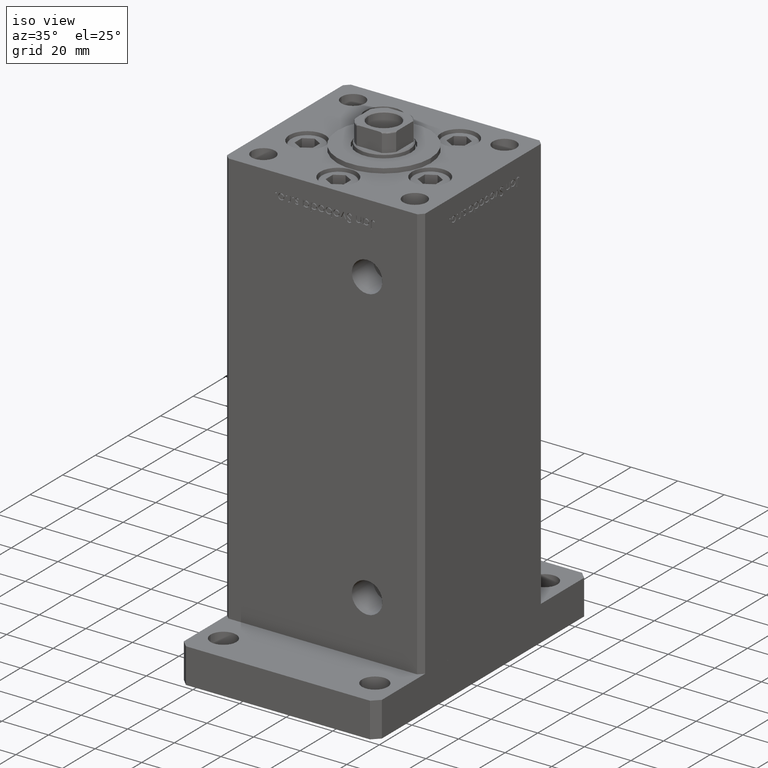
[diagram: clean part render]
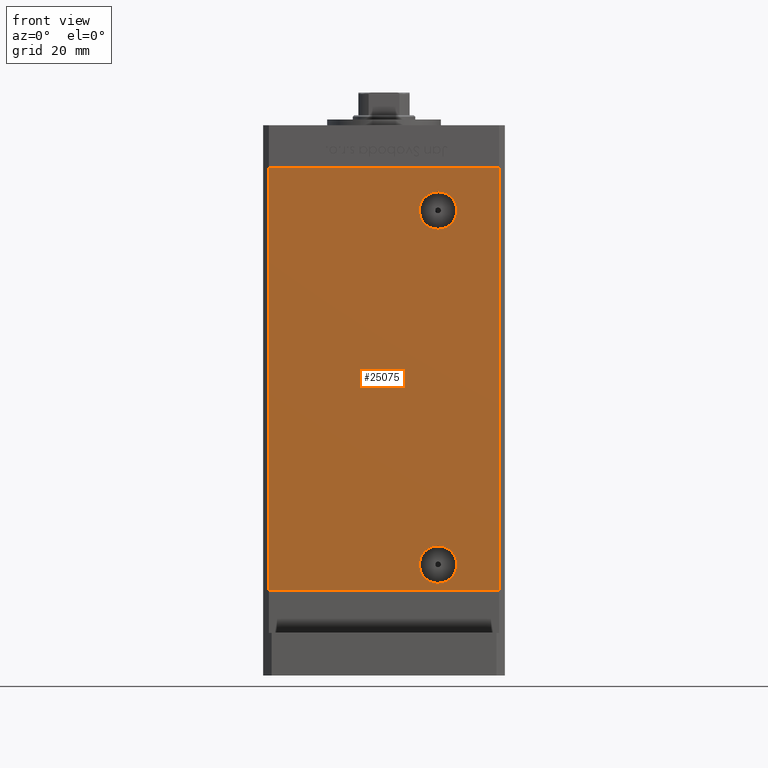
[diagram: tour spotlight — one face highlighted and labeled with its STEP entity id]
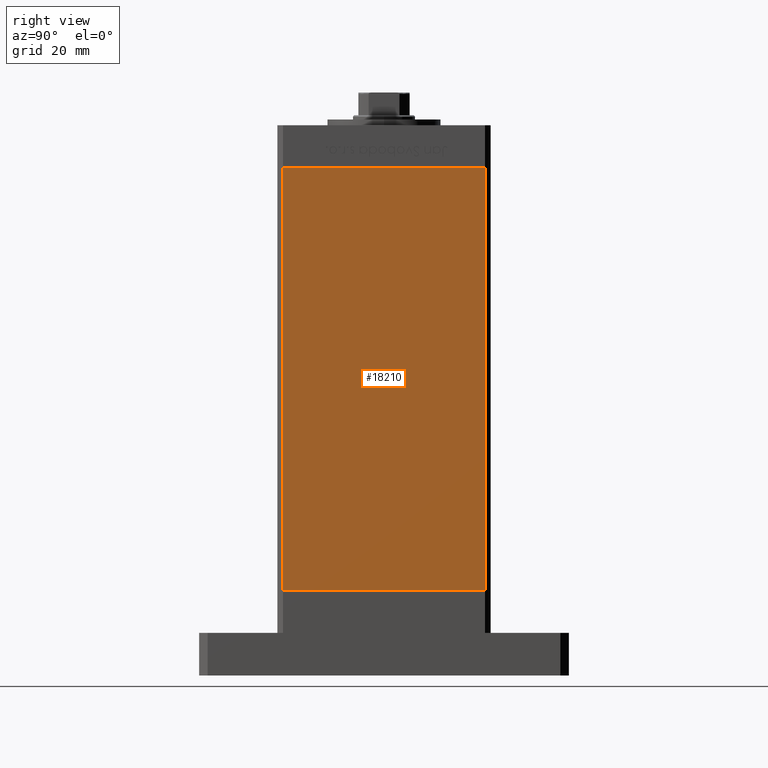
[diagram: tour spotlight — one face highlighted and labeled with its STEP entity id]
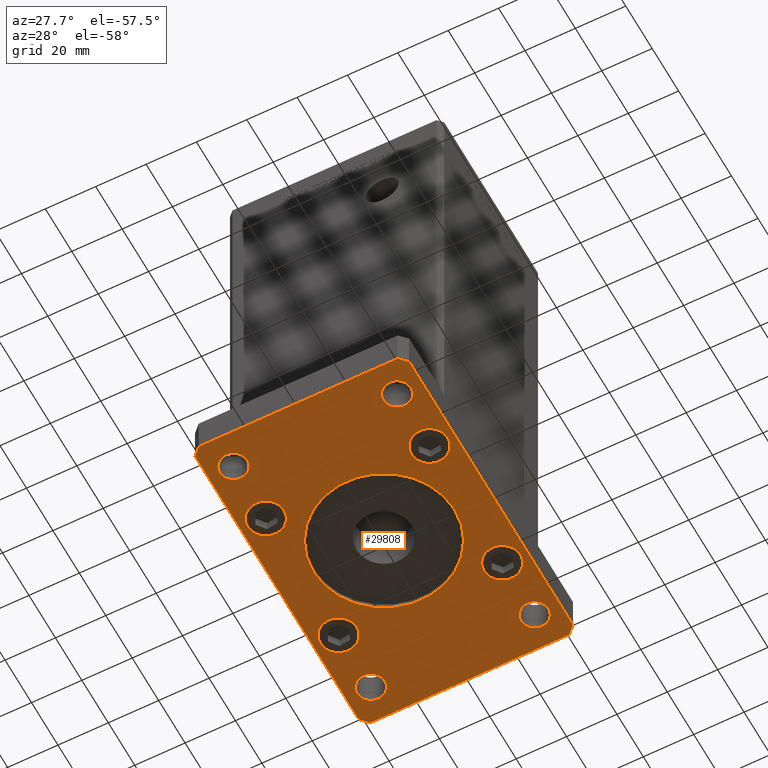
[diagram: tour spotlight — one face highlighted and labeled with its STEP entity id]
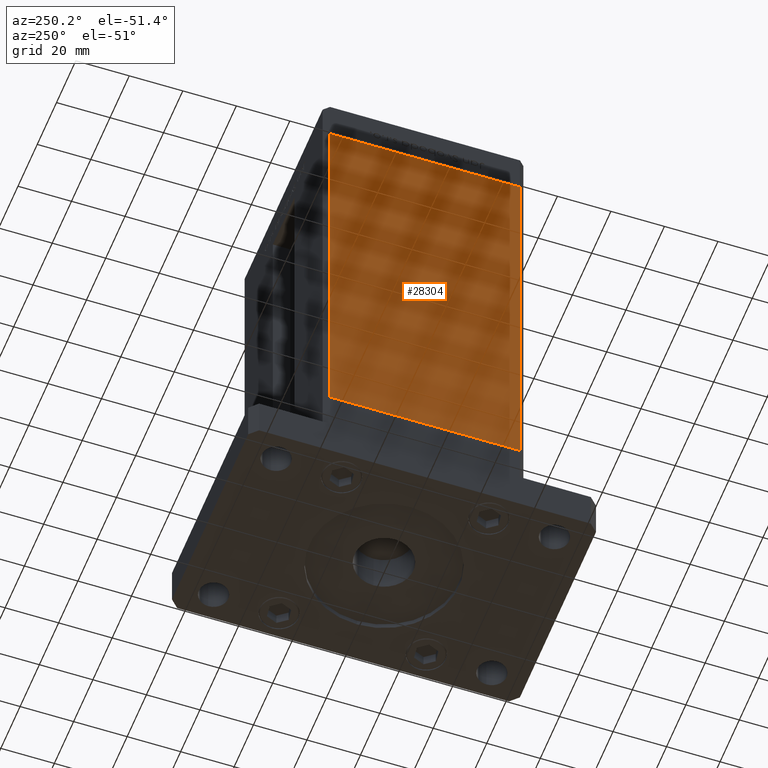
[diagram: tour spotlight — one face highlighted and labeled with its STEP entity id]
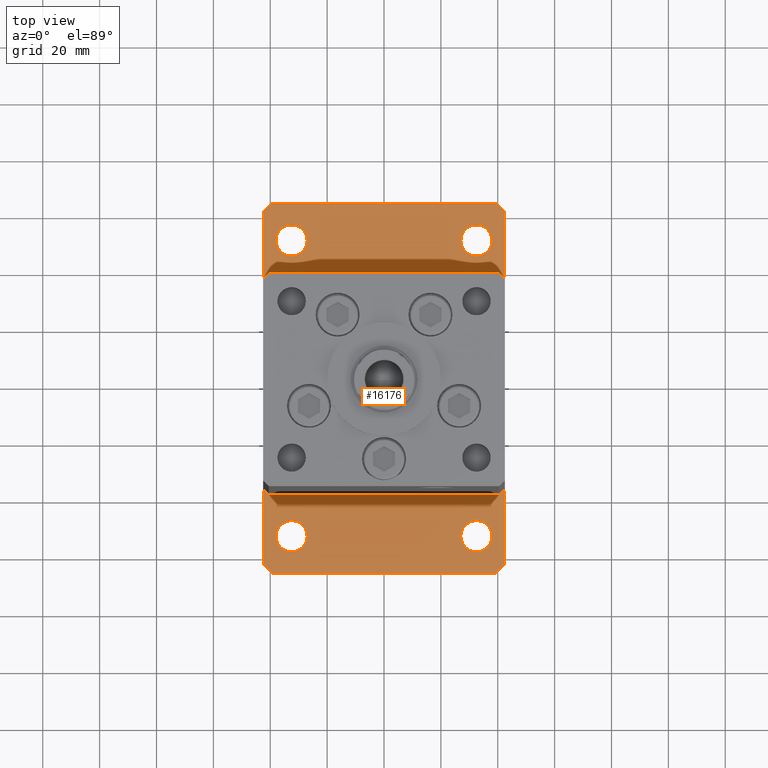
[diagram: tour spotlight — one face highlighted and labeled with its STEP entity id]
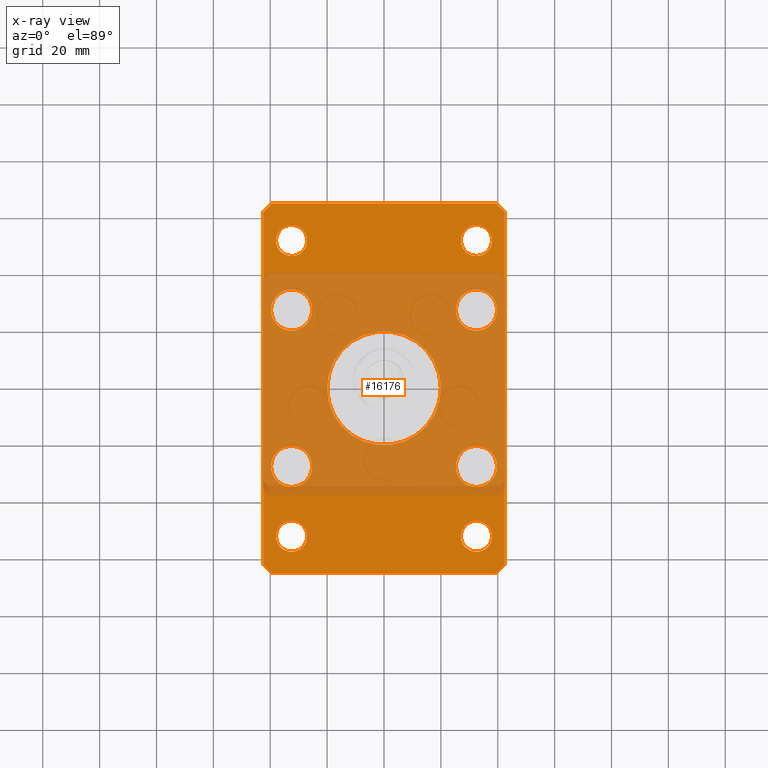
[diagram: x-ray of the same camera — body ghosted, this tour face saturated]
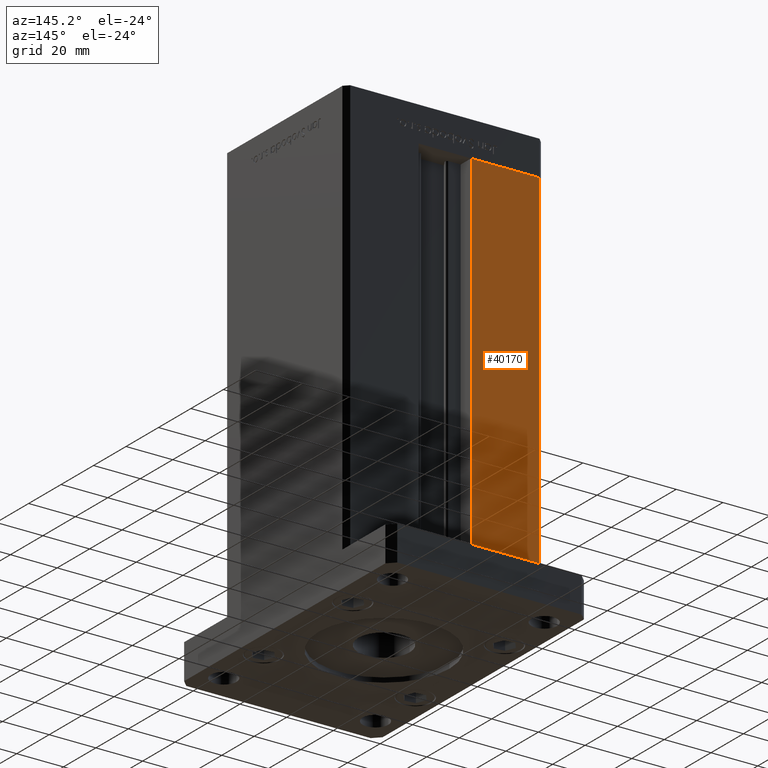
[diagram: tour spotlight — one face highlighted and labeled with its STEP entity id]
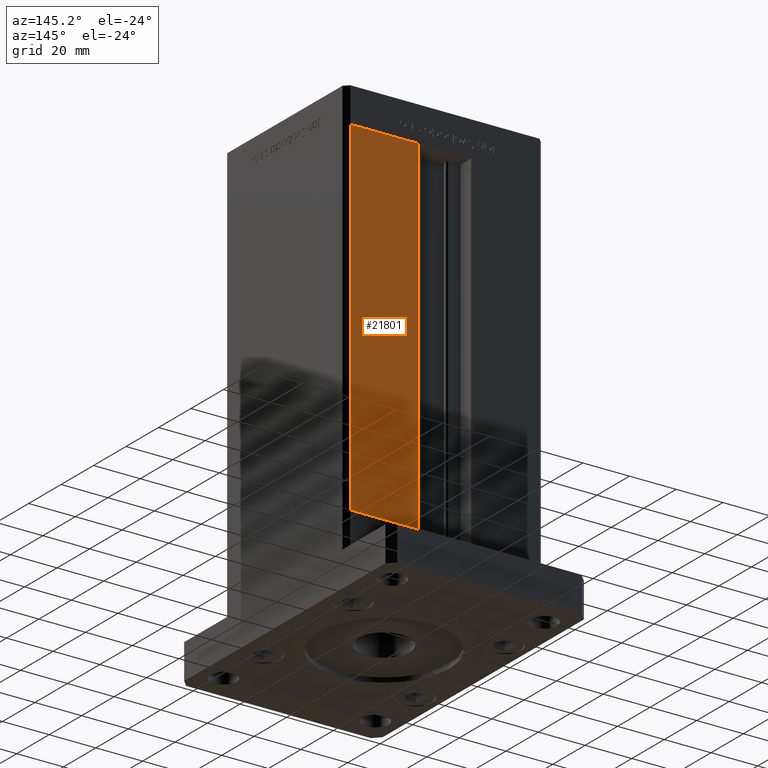
[diagram: tour spotlight — one face highlighted and labeled with its STEP entity id]
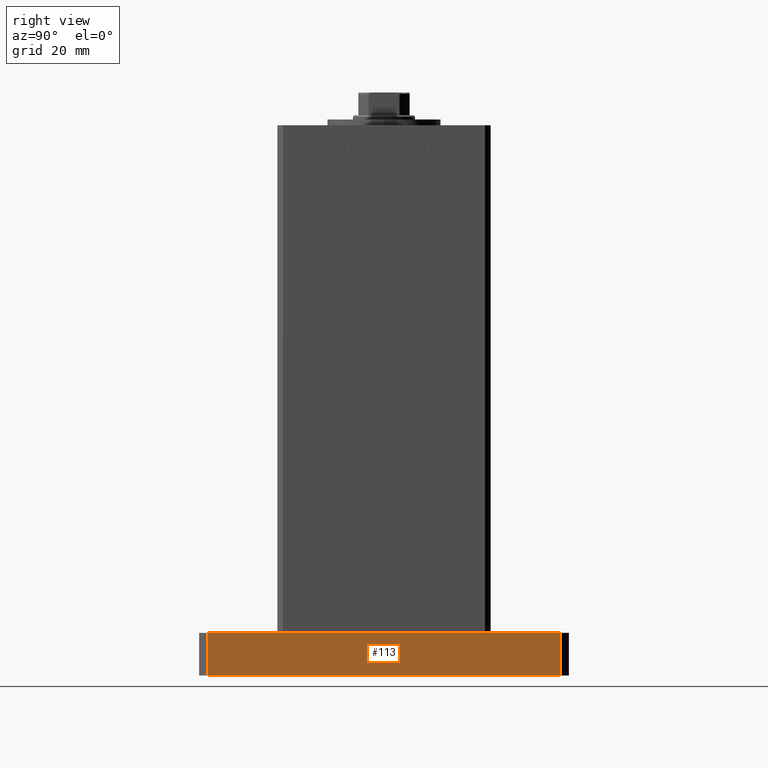
[diagram: tour spotlight — one face highlighted and labeled with its STEP entity id]
A machine part: a face-by-face anatomy tour. The part has 1313 B-rep faces; the first image is the clean iso view, then the 8 largest visible faces are spotlighted one at a time (largest first), each with its STEP entity span.

Face 1 — front view, entity #25075. In plain terms, the highlighted planar face has unit normal (0, 1, 0).
Definition (entity closure, byte-faithful):
#1782 = CARTESIAN_POINT ( 'NONE',  ( -40.49999999999998579, -37.50000000000000711, 148.5000000000000000 ) ) ;
#2313 = CARTESIAN_POINT ( 'NONE',  ( 18.99999999999998934, -37.50000000000000711, 9.000000000000007105 ) ) ;
#2696 = AXIS2_PLACEMENT_3D ( 'NONE', #2313, #23737, #52569 ) ;
#3222 = ORIENTED_EDGE ( 'NONE', *, *, #37997, .F. ) ;
#4176 = DIRECTION ( 'NONE',  ( -0.000000000000000000, 1.000000000000000000, -0.000000000000000000 ) ) ;
#4366 = CARTESIAN_POINT ( 'NONE',  ( 40.49999999999998579, -37.50000000000000711, 148.5000000000000000 ) ) ;
#4526 = EDGE_CURVE ( 'NONE', #50114, #53685, #28789, .T. ) ;
#5539 = ORIENTED_EDGE ( 'NONE', *, *, #4526, .F. ) ;
#5622 = AXIS2_PLACEMENT_3D ( 'NONE', #42295, #46641, #38209 ) ;
#6161 = ORIENTED_EDGE ( 'NONE', *, *, #53375, .T. ) ;
#6200 = CARTESIAN_POINT ( 'NONE',  ( -40.49999999999998579, -37.50000000000000711, 148.5000000000000000 ) ) ;
#6883 = CIRCLE ( 'NONE', #8608, 6.579999999999998295 ) ;
#7366 = EDGE_CURVE ( 'NONE', #29218, #51112, #6883, .T. ) ;
#7972 = EDGE_CURVE ( 'NONE', #12522, #33521, #12145, .T. ) ;
#8608 = AXIS2_PLACEMENT_3D ( 'NONE', #44540, #52964, #15484 ) ;
#9102 = CARTESIAN_POINT ( 'NONE',  ( -40.49999999999998579, -37.50000000000000711, 148.5000000000000000 ) ) ;
#9311 = DIRECTION ( 'NONE',  ( 1.000000000000000000, 0.000000000000000000, 0.000000000000000000 ) ) ;
#9644 = FACE_BOUND ( 'NONE', #32109, .T. ) ;
#10972 = CARTESIAN_POINT ( 'NONE',  ( 18.99999999999998934, -37.50000000000000711, 15.58000000000000718 ) ) ;
#11066 = EDGE_CURVE ( 'NONE', #30827, #24621, #14536, .T. ) ;
#11082 = EDGE_CURVE ( 'NONE', #51112, #29218, #39089, .T. ) ;
#12145 = CIRCLE ( 'NONE', #20757, 6.580000000000002736 ) ;
#12311 = ORIENTED_EDGE ( 'NONE', *, *, #7972, .T. ) ;
#12324 = DIRECTION ( 'NONE',  ( 0.000000000000000000, 0.000000000000000000, -1.000000000000000000 ) ) ;
#12522 = VERTEX_POINT ( 'NONE', #39954 ) ;
#14370 = CARTESIAN_POINT ( 'NONE',  ( 40.49999999999998579, -37.50000000000000711, 0.000000000000000000 ) ) ;
#14536 = LINE ( 'NONE', #9102, #28666 ) ;
#15484 = DIRECTION ( 'NONE',  ( 0.000000000000000000, 0.000000000000000000, -1.000000000000000000 ) ) ;
#16375 = VECTOR ( 'NONE', #53550, 1000.000000000000000 ) ;
#17476 = LINE ( 'NONE', #30481, #44180 ) ;
#19127 = CARTESIAN_POINT ( 'NONE',  ( -40.49999999999998579, -37.50000000000000711, 148.5000000000000000 ) ) ;
#20592 = ORIENTED_EDGE ( 'NONE', *, *, #11082, .F. ) ;
#20757 = AXIS2_PLACEMENT_3D ( 'NONE', #32692, #4176, #12324 ) ;
#22905 = FACE_OUTER_BOUND ( 'NONE', #49309, .T. ) ;
#23168 = DIRECTION ( 'NONE',  ( 0.000000000000000000, 1.000000000000000000, 0.000000000000000000 ) ) ;
#23737 = DIRECTION ( 'NONE',  ( 0.000000000000000000, -1.000000000000000000, 0.000000000000000000 ) ) ;
#24148 = ORIENTED_EDGE ( 'NONE', *, *, #11066, .T. ) ;
#24390 = CARTESIAN_POINT ( 'NONE',  ( -40.49999999999998579, -37.50000000000000711, 0.000000000000000000 ) ) ;
#24621 = VERTEX_POINT ( 'NONE', #24390 ) ;
#25075 = ADVANCED_FACE ( 'NONE', ( #43867, #22905, #9644 ), #38703, .F. ) ;
#25645 = DIRECTION ( 'NONE',  ( -0.000000000000000000, -0.000000000000000000, -1.000000000000000000 ) ) ;
#25934 = CARTESIAN_POINT ( 'NONE',  ( 18.99999999999997513, -37.50000000000000711, 140.0800000000000125 ) ) ;
#28004 = EDGE_LOOP ( 'NONE', ( #20592, #50339 ) ) ;
#28666 = VECTOR ( 'NONE', #25645, 1000.000000000000000 ) ;
#28789 = LINE ( 'NONE', #4366, #16375 ) ;
#29218 = VERTEX_POINT ( 'NONE', #10972 ) ;
#30481 = CARTESIAN_POINT ( 'NONE',  ( -40.49999999999998579, -37.50000000000000711, 0.000000000000000000 ) ) ;
#30827 = VERTEX_POINT ( 'NONE', #1782 ) ;
#32109 = EDGE_LOOP ( 'NONE', ( #12311, #6161 ) ) ;
#32692 = CARTESIAN_POINT ( 'NONE',  ( 18.99999999999997513, -37.50000000000000711, 133.5000000000000000 ) ) ;
#32716 = AXIS2_PLACEMENT_3D ( 'NONE', #19127, #23168, #52015 ) ;
#33521 = VERTEX_POINT ( 'NONE', #25934 ) ;
#33861 = EDGE_CURVE ( 'NONE', #24621, #53685, #17476, .T. ) ;
#34711 = LINE ( 'NONE', #6200, #39124 ) ;
#37997 = EDGE_CURVE ( 'NONE', #30827, #50114, #34711, .T. ) ;
#38209 = DIRECTION ( 'NONE',  ( 0.000000000000000000, 0.000000000000000000, -1.000000000000000000 ) ) ;
#38703 = PLANE ( 'NONE',  #32716 ) ;
#39089 = CIRCLE ( 'NONE', #2696, 6.579999999999998295 ) ;
#39124 = VECTOR ( 'NONE', #48031, 1000.000000000000000 ) ;
#39954 = CARTESIAN_POINT ( 'NONE',  ( 18.99999999999997513, -37.50000000000000711, 126.9200000000000017 ) ) ;
#39960 = ORIENTED_EDGE ( 'NONE', *, *, #33861, .T. ) ;
#41950 = CARTESIAN_POINT ( 'NONE',  ( 40.49999999999998579, -37.50000000000000711, 148.5000000000000000 ) ) ;
#42295 = CARTESIAN_POINT ( 'NONE',  ( 18.99999999999997513, -37.50000000000000711, 133.5000000000000000 ) ) ;
#43310 = CARTESIAN_POINT ( 'NONE',  ( 18.99999999999998934, -37.50000000000000711, 2.420000000000009699 ) ) ;
#43867 = FACE_BOUND ( 'NONE', #28004, .T. ) ;
#44180 = VECTOR ( 'NONE', #9311, 1000.000000000000000 ) ;
#44540 = CARTESIAN_POINT ( 'NONE',  ( 18.99999999999998934, -37.50000000000000711, 9.000000000000007105 ) ) ;
#46641 = DIRECTION ( 'NONE',  ( -0.000000000000000000, 1.000000000000000000, -0.000000000000000000 ) ) ;
#48031 = DIRECTION ( 'NONE',  ( 1.000000000000000000, 0.000000000000000000, 0.000000000000000000 ) ) ;
#49309 = EDGE_LOOP ( 'NONE', ( #39960, #5539, #3222, #24148 ) ) ;
#49847 = CIRCLE ( 'NONE', #5622, 6.580000000000002736 ) ;
#50114 = VERTEX_POINT ( 'NONE', #41950 ) ;
#50339 = ORIENTED_EDGE ( 'NONE', *, *, #7366, .F. ) ;
#51112 = VERTEX_POINT ( 'NONE', #43310 ) ;
#52015 = DIRECTION ( 'NONE',  ( 0.000000000000000000, -0.000000000000000000, 1.000000000000000000 ) ) ;
#52569 = DIRECTION ( 'NONE',  ( 0.000000000000000000, 0.000000000000000000, -1.000000000000000000 ) ) ;
#52964 = DIRECTION ( 'NONE',  ( 0.000000000000000000, -1.000000000000000000, 0.000000000000000000 ) ) ;
#53375 = EDGE_CURVE ( 'NONE', #33521, #12522, #49847, .T. ) ;
#53550 = DIRECTION ( 'NONE',  ( -0.000000000000000000, -0.000000000000000000, -1.000000000000000000 ) ) ;
#53685 = VERTEX_POINT ( 'NONE', #14370 ) ;

Face 2 — right view, entity #18210. In plain terms, the highlighted planar face has unit normal (1, -0, 0).
Definition (entity closure, byte-faithful):
#1120 = ORIENTED_EDGE ( 'NONE', *, *, #1482, .F. ) ;
#1482 = EDGE_CURVE ( 'NONE', #45760, #16692, #19934, .T. ) ;
#2443 = EDGE_LOOP ( 'NONE', ( #37465, #1120, #22876, #24507 ) ) ;
#3152 = EDGE_CURVE ( 'NONE', #45760, #48710, #15676, .T. ) ;
#4649 = PLANE ( 'NONE',  #39742 ) ;
#8057 = LINE ( 'NONE', #24602, #26207 ) ;
#11094 = VECTOR ( 'NONE', #44462, 1000.000000000000000 ) ;
#13335 = DIRECTION ( 'NONE',  ( 1.000000000000000000, -2.931927001650941360E-16, 0.000000000000000000 ) ) ;
#15676 = LINE ( 'NONE', #40925, #11094 ) ;
#15909 = CARTESIAN_POINT ( 'NONE',  ( 42.50000000000000711, 35.50000000000001421, 148.5000000000000000 ) ) ;
#16692 = VERTEX_POINT ( 'NONE', #21119 ) ;
#16909 = EDGE_CURVE ( 'NONE', #48710, #37065, #8057, .T. ) ;
#17954 = FACE_OUTER_BOUND ( 'NONE', #2443, .T. ) ;
#18210 = ADVANCED_FACE ( 'NONE', ( #17954 ), #4649, .T. ) ;
#19268 = CARTESIAN_POINT ( 'NONE',  ( 42.49999999999998579, -35.50000000000000711, 148.5000000000000000 ) ) ;
#19934 = LINE ( 'NONE', #15909, #31865 ) ;
#21119 = CARTESIAN_POINT ( 'NONE',  ( 42.50000000000000711, 35.50000000000001421, 0.000000000000000000 ) ) ;
#22876 = ORIENTED_EDGE ( 'NONE', *, *, #3152, .T. ) ;
#24507 = ORIENTED_EDGE ( 'NONE', *, *, #16909, .T. ) ;
#24602 = CARTESIAN_POINT ( 'NONE',  ( 42.49999999999998579, -35.50000000000000711, 148.5000000000000000 ) ) ;
#26207 = VECTOR ( 'NONE', #41208, 1000.000000000000000 ) ;
#27990 = EDGE_CURVE ( 'NONE', #16692, #37065, #28125, .T. ) ;
#28125 = LINE ( 'NONE', #36032, #33720 ) ;
#30597 = CARTESIAN_POINT ( 'NONE',  ( 42.50000000000000711, 35.50000000000001421, 148.5000000000000000 ) ) ;
#31664 = DIRECTION ( 'NONE',  ( -2.931927001650941360E-16, -1.000000000000000000, 0.000000000000000000 ) ) ;
#31865 = VECTOR ( 'NONE', #32973, 1000.000000000000000 ) ;
#32973 = DIRECTION ( 'NONE',  ( -0.000000000000000000, -0.000000000000000000, -1.000000000000000000 ) ) ;
#33670 = CARTESIAN_POINT ( 'NONE',  ( 42.49999999999998579, -35.50000000000000711, 0.000000000000000000 ) ) ;
#33720 = VECTOR ( 'NONE', #31664, 1000.000000000000000 ) ;
#34504 = CARTESIAN_POINT ( 'NONE',  ( 42.50000000000000711, 35.50000000000001421, 148.5000000000000000 ) ) ;
#36032 = CARTESIAN_POINT ( 'NONE',  ( 42.50000000000000711, 35.50000000000001421, 0.000000000000000000 ) ) ;
#37065 = VERTEX_POINT ( 'NONE', #33670 ) ;
#37465 = ORIENTED_EDGE ( 'NONE', *, *, #27990, .F. ) ;
#39742 = AXIS2_PLACEMENT_3D ( 'NONE', #34504, #13335, #51107 ) ;
#40925 = CARTESIAN_POINT ( 'NONE',  ( 42.50000000000000711, 35.50000000000001421, 148.5000000000000000 ) ) ;
#41208 = DIRECTION ( 'NONE',  ( -0.000000000000000000, -0.000000000000000000, -1.000000000000000000 ) ) ;
#44462 = DIRECTION ( 'NONE',  ( -2.931927001650941360E-16, -1.000000000000000000, 0.000000000000000000 ) ) ;
#45760 = VERTEX_POINT ( 'NONE', #30597 ) ;
#48710 = VERTEX_POINT ( 'NONE', #19268 ) ;
#51107 = DIRECTION ( 'NONE',  ( 2.931927001650941360E-16, 1.000000000000000000, 0.000000000000000000 ) ) ;

Face 3 — auxiliary view, entity #29808. In plain terms, the highlighted planar face has unit normal (0, 0, 1).
Definition (entity closure, byte-faithful):
#133 = CARTESIAN_POINT ( 'NONE',  ( -42.50000000000002132, 62.00000000000000711, 0.000000000000000000 ) ) ;
#186 = LINE ( 'NONE', #454, #1609 ) ;
#419 = AXIS2_PLACEMENT_3D ( 'NONE', #29548, #46159, #8145 ) ;
#454 = CARTESIAN_POINT ( 'NONE',  ( -42.50000000000002132, 62.00000000000000711, 0.000000000000000000 ) ) ;
#486 = ORIENTED_EDGE ( 'NONE', *, *, #31480, .F. ) ;
#678 = DIRECTION ( 'NONE',  ( 1.000000000000000000, 0.000000000000000000, 0.000000000000000000 ) ) ;
#895 = AXIS2_PLACEMENT_3D ( 'NONE', #9450, #37971, #30345 ) ;
#916 = DIRECTION ( 'NONE',  ( 0.000000000000000000, 0.000000000000000000, 1.000000000000000000 ) ) ;
#930 = DIRECTION ( 'NONE',  ( 1.000000000000000000, 0.000000000000000000, 0.000000000000000000 ) ) ;
#1211 = CIRCLE ( 'NONE', #31528, 5.499999999999998224 ) ;
#1609 = VECTOR ( 'NONE', #29993, 1000.000000000000000 ) ;
#1685 = VECTOR ( 'NONE', #50894, 1000.000000000000000 ) ;
#1777 = EDGE_CURVE ( 'NONE', #14718, #20141, #30752, .T. ) ;
#1953 = ORIENTED_EDGE ( 'NONE', *, *, #22400, .T. ) ;
#1979 = EDGE_LOOP ( 'NONE', ( #51263, #36951 ) ) ;
#2422 = VERTEX_POINT ( 'NONE', #27309 ) ;
#2633 = LINE ( 'NONE', #31390, #4558 ) ;
#2780 = CARTESIAN_POINT ( 'NONE',  ( 32.50000000000000000, 27.50000000000000000, 0.000000000000000000 ) ) ;
#2958 = EDGE_LOOP ( 'NONE', ( #35750, #33731, #486, #28049, #29240, #13007, #14667, #36193 ) ) ;
#4558 = VECTOR ( 'NONE', #40652, 1000.000000000000000 ) ;
#4687 = FACE_BOUND ( 'NONE', #32462, .T. ) ;
#4868 = EDGE_CURVE ( 'NONE', #20141, #47641, #46996, .T. ) ;
#5345 = EDGE_LOOP ( 'NONE', ( #51387, #37144 ) ) ;
#5499 = DIRECTION ( 'NONE',  ( 1.000000000000000000, 0.000000000000000000, 0.000000000000000000 ) ) ;
#5773 = FACE_BOUND ( 'NONE', #1979, .T. ) ;
#6052 = CIRCLE ( 'NONE', #32060, 5.499999999999991118 ) ;
#6112 = CARTESIAN_POINT ( 'NONE',  ( 0.000000000000000000, 0.000000000000000000, 0.000000000000000000 ) ) ;
#6164 = DIRECTION ( 'NONE',  ( 0.000000000000000000, 0.000000000000000000, 1.000000000000000000 ) ) ;
#6209 = EDGE_CURVE ( 'NONE', #2422, #34723, #45883, .T. ) ;
#6358 = CARTESIAN_POINT ( 'NONE',  ( 32.50000000000000000, -27.50000000000000000, 0.000000000000000000 ) ) ;
#6444 = CARTESIAN_POINT ( 'NONE',  ( 32.50000000000000000, 51.99999999999999289, 0.000000000000000000 ) ) ;
#6485 = VERTEX_POINT ( 'NONE', #14140 ) ;
#6572 = DIRECTION ( 'NONE',  ( 0.000000000000000000, 0.000000000000000000, 1.000000000000000000 ) ) ;
#6622 = DIRECTION ( 'NONE',  ( 0.000000000000000000, 0.000000000000000000, 1.000000000000000000 ) ) ;
#6703 = DIRECTION ( 'NONE',  ( 1.000000000000000000, 0.000000000000000000, 0.000000000000000000 ) ) ;
#6854 = ORIENTED_EDGE ( 'NONE', *, *, #46614, .T. ) ;
#7314 = EDGE_CURVE ( 'NONE', #30948, #38034, #22293, .T. ) ;
#7966 = CARTESIAN_POINT ( 'NONE',  ( 42.50000000000000000, -61.99999999999988631, 0.000000000000000000 ) ) ;
#8063 = AXIS2_PLACEMENT_3D ( 'NONE', #24404, #23327, #15232 ) ;
#8145 = DIRECTION ( 'NONE',  ( 1.000000000000000000, 0.000000000000000000, 0.000000000000000000 ) ) ;
#8174 = CARTESIAN_POINT ( 'NONE',  ( 39.75000000000000000, 27.50000000000000000, 0.000000000000000000 ) ) ;
#8312 = VERTEX_POINT ( 'NONE', #16340 ) ;
#9285 = CIRCLE ( 'NONE', #33604, 5.499999999999998224 ) ;
#9450 = CARTESIAN_POINT ( 'NONE',  ( -32.50000000000000000, -27.50000000000000000, 0.000000000000000000 ) ) ;
#9462 = VECTOR ( 'NONE', #38822, 1000.000000000000114 ) ;
#9561 = DIRECTION ( 'NONE',  ( 0.000000000000000000, 0.000000000000000000, 1.000000000000000000 ) ) ;
#9873 = CARTESIAN_POINT ( 'NONE',  ( -42.49999999999999289, -62.00000000000001421, 0.000000000000000000 ) ) ;
#10008 = VERTEX_POINT ( 'NONE', #24220 ) ;
#10266 = CIRCLE ( 'NONE', #20633, 7.249999999999999112 ) ;
#11135 = AXIS2_PLACEMENT_3D ( 'NONE', #35747, #14855, #40103 ) ;
#12025 = ORIENTED_EDGE ( 'NONE', *, *, #6209, .F. ) ;
#12171 = CIRCLE ( 'NONE', #895, 7.249999999999999112 ) ;
#12183 = CARTESIAN_POINT ( 'NONE',  ( -25.25000000000000000, -27.50000000000000000, 0.000000000000000000 ) ) ;
#12794 = VECTOR ( 'NONE', #38664, 1000.000000000000000 ) ;
#13007 = ORIENTED_EDGE ( 'NONE', *, *, #7314, .F. ) ;
#13034 = VERTEX_POINT ( 'NONE', #32880 ) ;
#13391 = CARTESIAN_POINT ( 'NONE',  ( 32.50000000000000000, 27.50000000000000000, 0.000000000000000000 ) ) ;
#13499 = CARTESIAN_POINT ( 'NONE',  ( -27.00000000000000711, 52.00000000000000000, 0.000000000000000000 ) ) ;
#13503 = CARTESIAN_POINT ( 'NONE',  ( 32.50000000000000000, -27.50000000000000000, 0.000000000000000000 ) ) ;
#13566 = CARTESIAN_POINT ( 'NONE',  ( -26.99999999999998579, -52.00000000000000711, 0.000000000000000000 ) ) ;
#14140 = CARTESIAN_POINT ( 'NONE',  ( -38.00000000000000000, 52.00000000000000000, 0.000000000000000000 ) ) ;
#14667 = ORIENTED_EDGE ( 'NONE', *, *, #26938, .F. ) ;
#14718 = VERTEX_POINT ( 'NONE', #49558 ) ;
#14747 = ORIENTED_EDGE ( 'NONE', *, *, #27131, .T. ) ;
#14855 = DIRECTION ( 'NONE',  ( 0.000000000000000000, 0.000000000000000000, 1.000000000000000000 ) ) ;
#15167 = CARTESIAN_POINT ( 'NONE',  ( -32.50000000000000000, -27.50000000000000000, 0.000000000000000000 ) ) ;
#15232 = DIRECTION ( 'NONE',  ( 1.000000000000000000, 0.000000000000000000, 0.000000000000000000 ) ) ;
#16340 = CARTESIAN_POINT ( 'NONE',  ( 25.25000000000000000, 27.50000000000000000, 0.000000000000000000 ) ) ;
#16483 = AXIS2_PLACEMENT_3D ( 'NONE', #6358, #6622, #27238 ) ;
#16603 = ORIENTED_EDGE ( 'NONE', *, *, #24556, .T. ) ;
#16697 = EDGE_LOOP ( 'NONE', ( #29314, #44115 ) ) ;
#16826 = EDGE_LOOP ( 'NONE', ( #42489, #16603 ) ) ;
#17208 = CARTESIAN_POINT ( 'NONE',  ( -32.49999999999997868, -52.00000000000000711, 0.000000000000000000 ) ) ;
#17651 = CARTESIAN_POINT ( 'NONE',  ( 39.50000000000001421, -64.99999999999988631, 0.000000000000000000 ) ) ;
#17706 = ORIENTED_EDGE ( 'NONE', *, *, #27907, .T. ) ;
#17714 = AXIS2_PLACEMENT_3D ( 'NONE', #6444, #27588, #6703 ) ;
#17733 = FACE_OUTER_BOUND ( 'NONE', #2958, .T. ) ;
#17800 = DIRECTION ( 'NONE',  ( 0.000000000000000000, 0.000000000000000000, -1.000000000000000000 ) ) ;
#18987 = CARTESIAN_POINT ( 'NONE',  ( 32.49999999999997868, -52.00000000000000711, 0.000000000000000000 ) ) ;
#19588 = ORIENTED_EDGE ( 'NONE', *, *, #43903, .T. ) ;
#19826 = AXIS2_PLACEMENT_3D ( 'NONE', #53436, #49359, #41480 ) ;
#20141 = VERTEX_POINT ( 'NONE', #24428 ) ;
#20160 = EDGE_CURVE ( 'NONE', #42039, #13034, #34562, .T. ) ;
#20196 = CARTESIAN_POINT ( 'NONE',  ( -39.50000000000003553, 65.00000000000000000, 0.000000000000000000 ) ) ;
#20619 = VERTEX_POINT ( 'NONE', #21881 ) ;
#20633 = AXIS2_PLACEMENT_3D ( 'NONE', #13503, #6164, #22688 ) ;
#20754 = AXIS2_PLACEMENT_3D ( 'NONE', #15167, #27340, #38782 ) ;
#20929 = VERTEX_POINT ( 'NONE', #8174 ) ;
#21261 = DIRECTION ( 'NONE',  ( 0.000000000000000000, 0.000000000000000000, 1.000000000000000000 ) ) ;
#21613 = LINE ( 'NONE', #31098, #41509 ) ;
#21881 = CARTESIAN_POINT ( 'NONE',  ( 25.25000000000000000, -27.50000000000000000, 0.000000000000000000 ) ) ;
#22293 = LINE ( 'NONE', #47323, #42470 ) ;
#22302 = PLANE ( 'NONE',  #48532 ) ;
#22400 = EDGE_CURVE ( 'NONE', #24639, #37459, #12171, .T. ) ;
#22502 = EDGE_LOOP ( 'NONE', ( #19588, #14747 ) ) ;
#22688 = DIRECTION ( 'NONE',  ( 1.000000000000000000, 0.000000000000000000, 0.000000000000000000 ) ) ;
#23327 = DIRECTION ( 'NONE',  ( 0.000000000000000000, 0.000000000000000000, 1.000000000000000000 ) ) ;
#23449 = CARTESIAN_POINT ( 'NONE',  ( -39.75000000000000000, -27.50000000000000000, 0.000000000000000000 ) ) ;
#24158 = CARTESIAN_POINT ( 'NONE',  ( -32.49999999999997868, -52.00000000000000711, 0.000000000000000000 ) ) ;
#24167 = CARTESIAN_POINT ( 'NONE',  ( 26.99999999999998579, -52.00000000000000711, 0.000000000000000000 ) ) ;
#24220 = CARTESIAN_POINT ( 'NONE',  ( -39.75000000000000711, 27.50000000000000000, 0.000000000000000000 ) ) ;
#24404 = CARTESIAN_POINT ( 'NONE',  ( -32.50000000000000711, 27.50000000000000000, 0.000000000000000000 ) ) ;
#24428 = CARTESIAN_POINT ( 'NONE',  ( 39.50000000000001421, -64.99999999999988631, 0.000000000000000000 ) ) ;
#24556 = EDGE_CURVE ( 'NONE', #45333, #51545, #9285, .T. ) ;
#24562 = VERTEX_POINT ( 'NONE', #44269 ) ;
#24639 = VERTEX_POINT ( 'NONE', #12183 ) ;
#24943 = DIRECTION ( 'NONE',  ( 1.000000000000000000, 0.000000000000000000, 0.000000000000000000 ) ) ;
#25300 = CARTESIAN_POINT ( 'NONE',  ( 0.000000000000000000, 0.000000000000000000, 0.000000000000000000 ) ) ;
#25827 = CIRCLE ( 'NONE', #11135, 7.249999999999999112 ) ;
#25838 = DIRECTION ( 'NONE',  ( 1.000000000000000000, 0.000000000000000000, -0.000000000000000000 ) ) ;
#26108 = DIRECTION ( 'NONE',  ( -0.7071067811865417996, 0.7071067811865532349, 0.000000000000000000 ) ) ;
#26119 = FACE_BOUND ( 'NONE', #32945, .T. ) ;
#26145 = LINE ( 'NONE', #9873, #1685 ) ;
#26188 = DIRECTION ( 'NONE',  ( -1.000000000000000000, 0.000000000000000000, 0.000000000000000000 ) ) ;
#26251 = EDGE_CURVE ( 'NONE', #8312, #20929, #37103, .T. ) ;
#26549 = ORIENTED_EDGE ( 'NONE', *, *, #35735, .T. ) ;
#26732 = DIRECTION ( 'NONE',  ( -1.000000000000000000, -3.513364001978340512E-16, 0.000000000000000000 ) ) ;
#26771 = AXIS2_PLACEMENT_3D ( 'NONE', #6112, #17800, #26188 ) ;
#26938 = EDGE_CURVE ( 'NONE', #47641, #30948, #21613, .T. ) ;
#27131 = EDGE_CURVE ( 'NONE', #40571, #10008, #25827, .T. ) ;
#27238 = DIRECTION ( 'NONE',  ( 1.000000000000000000, 0.000000000000000000, 0.000000000000000000 ) ) ;
#27309 = CARTESIAN_POINT ( 'NONE',  ( 28.00000000000000000, 3.429011037612589276E-15, 0.000000000000000000 ) ) ;
#27340 = DIRECTION ( 'NONE',  ( 0.000000000000000000, 0.000000000000000000, 1.000000000000000000 ) ) ;
#27360 = ORIENTED_EDGE ( 'NONE', *, *, #33426, .F. ) ;
#27386 = DIRECTION ( 'NONE',  ( 0.000000000000000000, 0.000000000000000000, 1.000000000000000000 ) ) ;
#27588 = DIRECTION ( 'NONE',  ( 0.000000000000000000, 0.000000000000000000, 1.000000000000000000 ) ) ;
#27664 = CIRCLE ( 'NONE', #50248, 7.249999999999999112 ) ;
#27878 = CARTESIAN_POINT ( 'NONE',  ( 37.99999999999999289, 51.99999999999999289, 0.000000000000000000 ) ) ;
#27907 = EDGE_CURVE ( 'NONE', #48531, #20619, #10266, .T. ) ;
#27971 = CIRCLE ( 'NONE', #8063, 7.249999999999999112 ) ;
#28049 = ORIENTED_EDGE ( 'NONE', *, *, #47219, .F. ) ;
#28616 = CARTESIAN_POINT ( 'NONE',  ( 32.50000000000000000, 51.99999999999999289, 0.000000000000000000 ) ) ;
#29240 = ORIENTED_EDGE ( 'NONE', *, *, #49240, .F. ) ;
#29314 = ORIENTED_EDGE ( 'NONE', *, *, #26251, .T. ) ;
#29318 = CARTESIAN_POINT ( 'NONE',  ( 39.75000000000000000, -27.50000000000000000, 0.000000000000000000 ) ) ;
#29373 = FACE_BOUND ( 'NONE', #16826, .T. ) ;
#29399 = EDGE_CURVE ( 'NONE', #20929, #8312, #27664, .T. ) ;
#29548 = CARTESIAN_POINT ( 'NONE',  ( -32.50000000000000000, 52.00000000000000000, 0.000000000000000000 ) ) ;
#29695 = CARTESIAN_POINT ( 'NONE',  ( 32.49999999999997868, -52.00000000000000711, 0.000000000000000000 ) ) ;
#29774 = AXIS2_PLACEMENT_3D ( 'NONE', #30163, #9561, #5499 ) ;
#29808 = ADVANCED_FACE ( 'NONE', ( #26119, #17733, #5773, #34005, #33474, #42728, #4687, #38639, #50054, #29373 ), #22302, .F. ) ;
#29993 = DIRECTION ( 'NONE',  ( 2.238352872228137677E-16, -1.000000000000000000, 0.000000000000000000 ) ) ;
#30163 = CARTESIAN_POINT ( 'NONE',  ( -32.50000000000000000, 52.00000000000000000, 0.000000000000000000 ) ) ;
#30345 = DIRECTION ( 'NONE',  ( 1.000000000000000000, 0.000000000000000000, 0.000000000000000000 ) ) ;
#30752 = LINE ( 'NONE', #39735, #12794 ) ;
#30948 = VERTEX_POINT ( 'NONE', #42676 ) ;
#31092 = AXIS2_PLACEMENT_3D ( 'NONE', #24158, #33390, #24943 ) ;
#31098 = CARTESIAN_POINT ( 'NONE',  ( 42.50000000000000000, -61.99999999999988631, 0.000000000000000000 ) ) ;
#31300 = EDGE_CURVE ( 'NONE', #37459, #24639, #48444, .T. ) ;
#31390 = CARTESIAN_POINT ( 'NONE',  ( -39.50000000000003553, 65.00000000000000000, 0.000000000000000000 ) ) ;
#31480 = EDGE_CURVE ( 'NONE', #34827, #24562, #186, .T. ) ;
#31528 = AXIS2_PLACEMENT_3D ( 'NONE', #29695, #38146, #678 ) ;
#31628 = CARTESIAN_POINT ( 'NONE',  ( 39.50000000000002842, 65.00000000000002842, 0.000000000000000000 ) ) ;
#32060 = AXIS2_PLACEMENT_3D ( 'NONE', #28616, #21261, #45228 ) ;
#32462 = EDGE_LOOP ( 'NONE', ( #26549, #17706 ) ) ;
#32880 = CARTESIAN_POINT ( 'NONE',  ( -37.99999999999997868, -52.00000000000000711, 0.000000000000000000 ) ) ;
#32945 = EDGE_LOOP ( 'NONE', ( #27360, #12025 ) ) ;
#33390 = DIRECTION ( 'NONE',  ( 0.000000000000000000, 0.000000000000000000, 1.000000000000000000 ) ) ;
#33426 = EDGE_CURVE ( 'NONE', #34723, #2422, #38960, .T. ) ;
#33474 = FACE_BOUND ( 'NONE', #44924, .T. ) ;
#33604 = AXIS2_PLACEMENT_3D ( 'NONE', #18987, #27386, #43992 ) ;
#33731 = ORIENTED_EDGE ( 'NONE', *, *, #33875, .F. ) ;
#33875 = EDGE_CURVE ( 'NONE', #24562, #14718, #26145, .T. ) ;
#34005 = FACE_BOUND ( 'NONE', #5345, .T. ) ;
#34562 = CIRCLE ( 'NONE', #31092, 5.499999999999994671 ) ;
#34723 = VERTEX_POINT ( 'NONE', #41954 ) ;
#34749 = EDGE_CURVE ( 'NONE', #35839, #49185, #6052, .T. ) ;
#34827 = VERTEX_POINT ( 'NONE', #133 ) ;
#35378 = VERTEX_POINT ( 'NONE', #13499 ) ;
#35735 = EDGE_CURVE ( 'NONE', #20619, #48531, #48603, .T. ) ;
#35747 = CARTESIAN_POINT ( 'NONE',  ( -32.50000000000000711, 27.50000000000000000, 0.000000000000000000 ) ) ;
#35750 = ORIENTED_EDGE ( 'NONE', *, *, #1777, .F. ) ;
#35839 = VERTEX_POINT ( 'NONE', #43576 ) ;
#36167 = DIRECTION ( 'NONE',  ( 1.000000000000000000, 0.000000000000000000, 0.000000000000000000 ) ) ;
#36193 = ORIENTED_EDGE ( 'NONE', *, *, #4868, .F. ) ;
#36750 = CIRCLE ( 'NONE', #47151, 5.499999999999994671 ) ;
#36951 = ORIENTED_EDGE ( 'NONE', *, *, #20160, .T. ) ;
#37103 = CIRCLE ( 'NONE', #44910, 7.249999999999999112 ) ;
#37144 = ORIENTED_EDGE ( 'NONE', *, *, #52813, .T. ) ;
#37459 = VERTEX_POINT ( 'NONE', #23449 ) ;
#37971 = DIRECTION ( 'NONE',  ( 0.000000000000000000, 0.000000000000000000, 1.000000000000000000 ) ) ;
#38034 = VERTEX_POINT ( 'NONE', #52105 ) ;
#38146 = DIRECTION ( 'NONE',  ( 0.000000000000000000, 0.000000000000000000, 1.000000000000000000 ) ) ;
#38639 = FACE_BOUND ( 'NONE', #16697, .T. ) ;
#38664 = DIRECTION ( 'NONE',  ( 1.000000000000000000, 1.405345600791337191E-15, 0.000000000000000000 ) ) ;
#38668 = DIRECTION ( 'NONE',  ( 0.000000000000000000, 0.000000000000000000, 1.000000000000000000 ) ) ;
#38782 = DIRECTION ( 'NONE',  ( 1.000000000000000000, 0.000000000000000000, 0.000000000000000000 ) ) ;
#38822 = DIRECTION ( 'NONE',  ( 0.7071067811865459074, 0.7071067811865491270, 0.000000000000000000 ) ) ;
#38960 = CIRCLE ( 'NONE', #19826, 28.00000000000000000 ) ;
#39735 = CARTESIAN_POINT ( 'NONE',  ( -39.50000000000000000, -65.00000000000000000, 0.000000000000000000 ) ) ;
#40103 = DIRECTION ( 'NONE',  ( 1.000000000000000000, 0.000000000000000000, 0.000000000000000000 ) ) ;
#40571 = VERTEX_POINT ( 'NONE', #48185 ) ;
#40652 = DIRECTION ( 'NONE',  ( -0.7071067811865466846, -0.7071067811865483499, 0.000000000000000000 ) ) ;
#41227 = CIRCLE ( 'NONE', #419, 5.499999999999994671 ) ;
#41480 = DIRECTION ( 'NONE',  ( -1.000000000000000000, 0.000000000000000000, 0.000000000000000000 ) ) ;
#41509 = VECTOR ( 'NONE', #46914, 1000.000000000000000 ) ;
#41954 = CARTESIAN_POINT ( 'NONE',  ( -28.00000000000000000, 0.000000000000000000, 0.000000000000000000 ) ) ;
#42039 = VERTEX_POINT ( 'NONE', #13566 ) ;
#42470 = VECTOR ( 'NONE', #26108, 1000.000000000000000 ) ;
#42489 = ORIENTED_EDGE ( 'NONE', *, *, #51806, .T. ) ;
#42676 = CARTESIAN_POINT ( 'NONE',  ( 42.50000000000000000, 62.00000000000000711, 0.000000000000000000 ) ) ;
#42728 = FACE_BOUND ( 'NONE', #45496, .T. ) ;
#43576 = CARTESIAN_POINT ( 'NONE',  ( 27.00000000000001421, 51.99999999999999289, 0.000000000000000000 ) ) ;
#43775 = CIRCLE ( 'NONE', #17714, 5.499999999999991118 ) ;
#43903 = EDGE_CURVE ( 'NONE', #10008, #40571, #27971, .T. ) ;
#43992 = DIRECTION ( 'NONE',  ( 1.000000000000000000, 0.000000000000000000, 0.000000000000000000 ) ) ;
#44115 = ORIENTED_EDGE ( 'NONE', *, *, #29399, .T. ) ;
#44269 = CARTESIAN_POINT ( 'NONE',  ( -42.49999999999999289, -62.00000000000001421, 0.000000000000000000 ) ) ;
#44473 = VERTEX_POINT ( 'NONE', #20196 ) ;
#44910 = AXIS2_PLACEMENT_3D ( 'NONE', #13391, #916, #46537 ) ;
#44924 = EDGE_LOOP ( 'NONE', ( #6854, #47767 ) ) ;
#45228 = DIRECTION ( 'NONE',  ( 1.000000000000000000, 0.000000000000000000, 0.000000000000000000 ) ) ;
#45333 = VERTEX_POINT ( 'NONE', #53057 ) ;
#45366 = VECTOR ( 'NONE', #26732, 1000.000000000000000 ) ;
#45496 = EDGE_LOOP ( 'NONE', ( #51613, #1953 ) ) ;
#45883 = CIRCLE ( 'NONE', #26771, 28.00000000000000000 ) ;
#46159 = DIRECTION ( 'NONE',  ( 0.000000000000000000, 0.000000000000000000, 1.000000000000000000 ) ) ;
#46537 = DIRECTION ( 'NONE',  ( 1.000000000000000000, 0.000000000000000000, 0.000000000000000000 ) ) ;
#46614 = EDGE_CURVE ( 'NONE', #6485, #35378, #47156, .T. ) ;
#46914 = DIRECTION ( 'NONE',  ( 0.000000000000000000, 1.000000000000000000, 0.000000000000000000 ) ) ;
#46996 = LINE ( 'NONE', #17651, #9462 ) ;
#47066 = DIRECTION ( 'NONE',  ( 0.000000000000000000, 0.000000000000000000, 1.000000000000000000 ) ) ;
#47151 = AXIS2_PLACEMENT_3D ( 'NONE', #17208, #38668, #930 ) ;
#47156 = CIRCLE ( 'NONE', #29774, 5.499999999999994671 ) ;
#47219 = EDGE_CURVE ( 'NONE', #44473, #34827, #2633, .T. ) ;
#47323 = CARTESIAN_POINT ( 'NONE',  ( 42.50000000000000000, 62.00000000000000711, 0.000000000000000000 ) ) ;
#47641 = VERTEX_POINT ( 'NONE', #7966 ) ;
#47767 = ORIENTED_EDGE ( 'NONE', *, *, #53540, .T. ) ;
#48185 = CARTESIAN_POINT ( 'NONE',  ( -25.25000000000000711, 27.50000000000000000, 0.000000000000000000 ) ) ;
#48231 = LINE ( 'NONE', #31628, #45366 ) ;
#48444 = CIRCLE ( 'NONE', #20754, 7.249999999999999112 ) ;
#48531 = VERTEX_POINT ( 'NONE', #29318 ) ;
#48532 = AXIS2_PLACEMENT_3D ( 'NONE', #25300, #47066, #25838 ) ;
#48603 = CIRCLE ( 'NONE', #16483, 7.249999999999999112 ) ;
#49185 = VERTEX_POINT ( 'NONE', #27878 ) ;
#49240 = EDGE_CURVE ( 'NONE', #38034, #44473, #48231, .T. ) ;
#49359 = DIRECTION ( 'NONE',  ( 0.000000000000000000, 0.000000000000000000, -1.000000000000000000 ) ) ;
#49558 = CARTESIAN_POINT ( 'NONE',  ( -39.50000000000000000, -65.00000000000000000, 0.000000000000000000 ) ) ;
#50054 = FACE_BOUND ( 'NONE', #22502, .T. ) ;
#50087 = EDGE_CURVE ( 'NONE', #13034, #42039, #36750, .T. ) ;
#50248 = AXIS2_PLACEMENT_3D ( 'NONE', #2780, #6572, #36167 ) ;
#50894 = DIRECTION ( 'NONE',  ( 0.7071067811865483499, -0.7071067811865466846, 0.000000000000000000 ) ) ;
#51263 = ORIENTED_EDGE ( 'NONE', *, *, #50087, .T. ) ;
#51387 = ORIENTED_EDGE ( 'NONE', *, *, #34749, .T. ) ;
#51545 = VERTEX_POINT ( 'NONE', #24167 ) ;
#51613 = ORIENTED_EDGE ( 'NONE', *, *, #31300, .T. ) ;
#51806 = EDGE_CURVE ( 'NONE', #51545, #45333, #1211, .T. ) ;
#52105 = CARTESIAN_POINT ( 'NONE',  ( 39.50000000000002842, 65.00000000000002842, 0.000000000000000000 ) ) ;
#52813 = EDGE_CURVE ( 'NONE', #49185, #35839, #43775, .T. ) ;
#53057 = CARTESIAN_POINT ( 'NONE',  ( 37.99999999999997868, -52.00000000000000711, 0.000000000000000000 ) ) ;
#53436 = CARTESIAN_POINT ( 'NONE',  ( 0.000000000000000000, 0.000000000000000000, 0.000000000000000000 ) ) ;
#53540 = EDGE_CURVE ( 'NONE', #35378, #6485, #41227, .T. ) ;

Face 4 — auxiliary view, entity #28304. In plain terms, the highlighted planar face has unit normal (1, 0, 0).
Definition (entity closure, byte-faithful):
#621 = FACE_OUTER_BOUND ( 'NONE', #31019, .T. ) ;
#1835 = VECTOR ( 'NONE', #41160, 1000.000000000000000 ) ;
#6725 = CARTESIAN_POINT ( 'NONE',  ( -42.50000000000000711, 35.50000000000001421, 148.5000000000000000 ) ) ;
#12286 = ORIENTED_EDGE ( 'NONE', *, *, #32545, .F. ) ;
#12605 = CARTESIAN_POINT ( 'NONE',  ( -42.50000000000000711, 35.50000000000001421, 0.000000000000000000 ) ) ;
#12619 = DIRECTION ( 'NONE',  ( -0.000000000000000000, -0.000000000000000000, -1.000000000000000000 ) ) ;
#12881 = CARTESIAN_POINT ( 'NONE',  ( -42.49999999999998579, -35.50000000000000711, 148.5000000000000000 ) ) ;
#14376 = VERTEX_POINT ( 'NONE', #6725 ) ;
#17746 = LINE ( 'NONE', #34295, #36341 ) ;
#17924 = LINE ( 'NONE', #50524, #34917 ) ;
#17942 = ORIENTED_EDGE ( 'NONE', *, *, #27248, .F. ) ;
#18467 = CARTESIAN_POINT ( 'NONE',  ( -42.49999999999998579, -35.50000000000000711, 148.5000000000000000 ) ) ;
#20690 = PLANE ( 'NONE',  #42391 ) ;
#25026 = CARTESIAN_POINT ( 'NONE',  ( -42.50000000000000711, 35.50000000000001421, 148.5000000000000000 ) ) ;
#26974 = CARTESIAN_POINT ( 'NONE',  ( -42.50000000000000711, 35.50000000000001421, 0.000000000000000000 ) ) ;
#27248 = EDGE_CURVE ( 'NONE', #30292, #43285, #33255, .T. ) ;
#28304 = ADVANCED_FACE ( 'NONE', ( #621 ), #20690, .F. ) ;
#28836 = DIRECTION ( 'NONE',  ( -2.931927001650941360E-16, 1.000000000000000000, 0.000000000000000000 ) ) ;
#30292 = VERTEX_POINT ( 'NONE', #18467 ) ;
#31019 = EDGE_LOOP ( 'NONE', ( #51059, #17942, #12286, #51991 ) ) ;
#32545 = EDGE_CURVE ( 'NONE', #14376, #30292, #17746, .T. ) ;
#32800 = VECTOR ( 'NONE', #12619, 1000.000000000000000 ) ;
#33255 = LINE ( 'NONE', #12881, #32800 ) ;
#34295 = CARTESIAN_POINT ( 'NONE',  ( -42.50000000000000711, 35.50000000000001421, 148.5000000000000000 ) ) ;
#34917 = VECTOR ( 'NONE', #47269, 1000.000000000000000 ) ;
#36341 = VECTOR ( 'NONE', #42744, 1000.000000000000000 ) ;
#38626 = EDGE_CURVE ( 'NONE', #42349, #43285, #45222, .T. ) ;
#41160 = DIRECTION ( 'NONE',  ( 2.931927001650941360E-16, -1.000000000000000000, 0.000000000000000000 ) ) ;
#41649 = DIRECTION ( 'NONE',  ( 1.000000000000000000, 2.931927001650941360E-16, -0.000000000000000000 ) ) ;
#42349 = VERTEX_POINT ( 'NONE', #26974 ) ;
#42391 = AXIS2_PLACEMENT_3D ( 'NONE', #25026, #41649, #28836 ) ;
#42744 = DIRECTION ( 'NONE',  ( 2.931927001650941360E-16, -1.000000000000000000, 0.000000000000000000 ) ) ;
#42873 = EDGE_CURVE ( 'NONE', #14376, #42349, #17924, .T. ) ;
#43285 = VERTEX_POINT ( 'NONE', #51184 ) ;
#45222 = LINE ( 'NONE', #12605, #1835 ) ;
#47269 = DIRECTION ( 'NONE',  ( -0.000000000000000000, -0.000000000000000000, -1.000000000000000000 ) ) ;
#50524 = CARTESIAN_POINT ( 'NONE',  ( -42.50000000000000711, 35.50000000000001421, 148.5000000000000000 ) ) ;
#51059 = ORIENTED_EDGE ( 'NONE', *, *, #38626, .T. ) ;
#51184 = CARTESIAN_POINT ( 'NONE',  ( -42.49999999999998579, -35.50000000000000711, 0.000000000000000000 ) ) ;
#51991 = ORIENTED_EDGE ( 'NONE', *, *, #42873, .T. ) ;

Face 5 — top view, entity #16176. An x-ray twin of the same camera follows (body ghosted, this face saturated) — the face is partly hidden behind the body. In plain terms, the highlighted planar face has unit normal (0, 0, 1).
Definition (entity closure, byte-faithful):
#9 = VERTEX_POINT ( 'NONE', #24131 ) ;
#76 = VERTEX_POINT ( 'NONE', #42328 ) ;
#544 = ORIENTED_EDGE ( 'NONE', *, *, #25072, .F. ) ;
#620 = DIRECTION ( 'NONE',  ( 0.000000000000000000, 0.000000000000000000, 1.000000000000000000 ) ) ;
#662 = VECTOR ( 'NONE', #26595, 1000.000000000000114 ) ;
#673 = CARTESIAN_POINT ( 'NONE',  ( -32.49999999999997868, -52.00000000000000711, 15.00000000000000000 ) ) ;
#1166 = ORIENTED_EDGE ( 'NONE', *, *, #34191, .T. ) ;
#1468 = DIRECTION ( 'NONE',  ( 0.000000000000000000, 0.000000000000000000, 1.000000000000000000 ) ) ;
#1521 = EDGE_CURVE ( 'NONE', #25337, #34708, #3406, .T. ) ;
#2136 = VECTOR ( 'NONE', #35292, 1000.000000000000000 ) ;
#2336 = LINE ( 'NONE', #32458, #36419 ) ;
#2404 = ORIENTED_EDGE ( 'NONE', *, *, #34925, .T. ) ;
#2473 = EDGE_LOOP ( 'NONE', ( #50820, #32929 ) ) ;
#2759 = EDGE_CURVE ( 'NONE', #16431, #9, #18037, .T. ) ;
#3277 = CIRCLE ( 'NONE', #21404, 5.499999999999994671 ) ;
#3342 = CIRCLE ( 'NONE', #23223, 5.499999999999998224 ) ;
#3406 = LINE ( 'NONE', #28097, #53563 ) ;
#3495 = DIRECTION ( 'NONE',  ( 0.000000000000000000, 0.000000000000000000, 1.000000000000000000 ) ) ;
#3586 = VERTEX_POINT ( 'NONE', #34281 ) ;
#3621 = LINE ( 'NONE', #16902, #26143 ) ;
#3855 = DIRECTION ( 'NONE',  ( 0.000000000000000000, 0.000000000000000000, 1.000000000000000000 ) ) ;
#4068 = VERTEX_POINT ( 'NONE', #9095 ) ;
#4265 = DIRECTION ( 'NONE',  ( 1.000000000000000000, 0.000000000000000000, 0.000000000000000000 ) ) ;
#4643 = DIRECTION ( 'NONE',  ( 1.000000000000000000, 0.000000000000000000, 0.000000000000000000 ) ) ;
#4799 = VERTEX_POINT ( 'NONE', #5153 ) ;
#4980 = VERTEX_POINT ( 'NONE', #37158 ) ;
#4984 = VERTEX_POINT ( 'NONE', #20303 ) ;
#5153 = CARTESIAN_POINT ( 'NONE',  ( -26.99999999999998579, -52.00000000000000711, 15.00000000000000000 ) ) ;
#5234 = CIRCLE ( 'NONE', #24294, 7.249999999999999112 ) ;
#5244 = CARTESIAN_POINT ( 'NONE',  ( 39.50000000000002842, 65.00000000000002842, 15.00000000000000000 ) ) ;
#5313 = VECTOR ( 'NONE', #51043, 1000.000000000000000 ) ;
#6091 = CIRCLE ( 'NONE', #36453, 5.499999999999991118 ) ;
#6515 = LINE ( 'NONE', #21982, #2136 ) ;
#6613 = CARTESIAN_POINT ( 'NONE',  ( 42.50000000000000000, -61.99999999999988631, 15.00000000000000000 ) ) ;
#7171 = CARTESIAN_POINT ( 'NONE',  ( 32.50000000000000000, 51.99999999999999289, 15.00000000000000000 ) ) ;
#8079 = VERTEX_POINT ( 'NONE', #5244 ) ;
#8483 = CARTESIAN_POINT ( 'NONE',  ( 32.50000000000000000, -27.50000000000000000, 15.00000000000000000 ) ) ;
#8542 = CARTESIAN_POINT ( 'NONE',  ( -25.25000000000000000, -27.50000000000000000, 15.00000000000000000 ) ) ;
#8794 = CARTESIAN_POINT ( 'NONE',  ( -39.50000000000000000, -65.00000000000000000, 15.00000000000000000 ) ) ;
#8937 = EDGE_CURVE ( 'NONE', #8992, #49537, #5234, .T. ) ;
#8986 = DIRECTION ( 'NONE',  ( 0.000000000000000000, 0.000000000000000000, 1.000000000000000000 ) ) ;
#8992 = VERTEX_POINT ( 'NONE', #27749 ) ;
#9061 = LINE ( 'NONE', #26681, #18184 ) ;
#9076 = DIRECTION ( 'NONE',  ( 1.000000000000000000, 0.000000000000000000, 0.000000000000000000 ) ) ;
#9095 = CARTESIAN_POINT ( 'NONE',  ( 26.99999999999998579, -52.00000000000000711, 15.00000000000000000 ) ) ;
#9608 = EDGE_LOOP ( 'NONE', ( #17057, #32916 ) ) ;
#9619 = EDGE_CURVE ( 'NONE', #50984, #27082, #13024, .T. ) ;
#9744 = DIRECTION ( 'NONE',  ( 0.000000000000000000, 0.000000000000000000, 1.000000000000000000 ) ) ;
#11326 = FACE_BOUND ( 'NONE', #26353, .T. ) ;
#11430 = ORIENTED_EDGE ( 'NONE', *, *, #12691, .T. ) ;
#12178 = EDGE_CURVE ( 'NONE', #13840, #36407, #30449, .T. ) ;
#12382 = FACE_BOUND ( 'NONE', #9608, .T. ) ;
#12691 = EDGE_CURVE ( 'NONE', #8079, #36194, #42086, .T. ) ;
#12895 = VECTOR ( 'NONE', #51039, 1000.000000000000000 ) ;
#12950 = DIRECTION ( 'NONE',  ( 1.000000000000000000, 0.000000000000000000, 0.000000000000000000 ) ) ;
#12970 = CARTESIAN_POINT ( 'NONE',  ( -39.50000000000003553, 65.00000000000000000, 15.00000000000000000 ) ) ;
#13014 = DIRECTION ( 'NONE',  ( 0.000000000000000000, 0.000000000000000000, 1.000000000000000000 ) ) ;
#13024 = CIRCLE ( 'NONE', #52955, 7.249999999999999112 ) ;
#13771 = CIRCLE ( 'NONE', #44139, 5.499999999999998224 ) ;
#13840 = VERTEX_POINT ( 'NONE', #26726 ) ;
#13888 = CARTESIAN_POINT ( 'NONE',  ( -32.50000000000000000, -27.50000000000000000, 15.00000000000000000 ) ) ;
#14224 = EDGE_LOOP ( 'NONE', ( #44391, #29604 ) ) ;
#14236 = DIRECTION ( 'NONE',  ( 0.000000000000000000, 0.000000000000000000, 1.000000000000000000 ) ) ;
#14705 = CARTESIAN_POINT ( 'NONE',  ( 37.99999999999999289, 51.99999999999999289, 15.00000000000000000 ) ) ;
#15228 = EDGE_CURVE ( 'NONE', #36407, #13840, #29506, .T. ) ;
#15643 = DIRECTION ( 'NONE',  ( 0.7071067811865483499, -0.7071067811865466846, 0.000000000000000000 ) ) ;
#15799 = AXIS2_PLACEMENT_3D ( 'NONE', #673, #16445, #9076 ) ;
#15812 = AXIS2_PLACEMENT_3D ( 'NONE', #27844, #28894, #19692 ) ;
#15952 = CARTESIAN_POINT ( 'NONE',  ( 0.000000000000000000, 0.000000000000000000, 15.00000000000000000 ) ) ;
#16176 = ADVANCED_FACE ( 'NONE', ( #12382, #41458, #19458, #32748, #36047, #48548, #32494, #49340, #36580, #11326 ), #19714, .T. ) ;
#16431 = VERTEX_POINT ( 'NONE', #37305 ) ;
#16445 = DIRECTION ( 'NONE',  ( 0.000000000000000000, 0.000000000000000000, 1.000000000000000000 ) ) ;
#16902 = CARTESIAN_POINT ( 'NONE',  ( -39.50000000000000000, -65.00000000000000000, 15.00000000000000000 ) ) ;
#17057 = ORIENTED_EDGE ( 'NONE', *, *, #22035, .F. ) ;
#17249 = DIRECTION ( 'NONE',  ( 1.000000000000000000, 0.000000000000000000, -0.000000000000000000 ) ) ;
#17542 = DIRECTION ( 'NONE',  ( 1.000000000000000000, 0.000000000000000000, 0.000000000000000000 ) ) ;
#17561 = ORIENTED_EDGE ( 'NONE', *, *, #32844, .F. ) ;
#17628 = CARTESIAN_POINT ( 'NONE',  ( 32.49999999999997868, -52.00000000000000711, 15.00000000000000000 ) ) ;
#17764 = CARTESIAN_POINT ( 'NONE',  ( 0.000000000000000000, 0.000000000000000000, 15.00000000000000000 ) ) ;
#18024 = DIRECTION ( 'NONE',  ( 1.000000000000000000, 0.000000000000000000, 0.000000000000000000 ) ) ;
#18037 = CIRCLE ( 'NONE', #34503, 7.249999999999999112 ) ;
#18184 = VECTOR ( 'NONE', #25603, 1000.000000000000000 ) ;
#18216 = EDGE_CURVE ( 'NONE', #27082, #50984, #48441, .T. ) ;
#19079 = ORIENTED_EDGE ( 'NONE', *, *, #19304, .F. ) ;
#19113 = CARTESIAN_POINT ( 'NONE',  ( 37.99999999999997868, -52.00000000000000711, 15.00000000000000000 ) ) ;
#19304 = EDGE_CURVE ( 'NONE', #4068, #51914, #3342, .T. ) ;
#19458 = FACE_BOUND ( 'NONE', #35699, .T. ) ;
#19682 = DIRECTION ( 'NONE',  ( 0.000000000000000000, 1.000000000000000000, 0.000000000000000000 ) ) ;
#19692 = DIRECTION ( 'NONE',  ( 1.000000000000000000, 0.000000000000000000, 0.000000000000000000 ) ) ;
#19698 = EDGE_CURVE ( 'NONE', #49537, #8992, #46724, .T. ) ;
#19714 = PLANE ( 'NONE',  #34004 ) ;
#20303 = CARTESIAN_POINT ( 'NONE',  ( 20.00000000000000000, 2.449293598294706513E-15, 15.00000000000000000 ) ) ;
#20328 = CARTESIAN_POINT ( 'NONE',  ( -27.00000000000000711, 52.00000000000000000, 15.00000000000000000 ) ) ;
#20731 = EDGE_CURVE ( 'NONE', #9, #16431, #46120, .T. ) ;
#20808 = ORIENTED_EDGE ( 'NONE', *, *, #41454, .F. ) ;
#21131 = CARTESIAN_POINT ( 'NONE',  ( -25.25000000000000711, 27.50000000000000000, 15.00000000000000000 ) ) ;
#21133 = AXIS2_PLACEMENT_3D ( 'NONE', #7171, #23706, #52802 ) ;
#21198 = ORIENTED_EDGE ( 'NONE', *, *, #53242, .T. ) ;
#21404 = AXIS2_PLACEMENT_3D ( 'NONE', #43596, #26462, #47938 ) ;
#21585 = CARTESIAN_POINT ( 'NONE',  ( 32.50000000000000000, 27.50000000000000000, 15.00000000000000000 ) ) ;
#21786 = DIRECTION ( 'NONE',  ( 1.000000000000000000, 0.000000000000000000, 0.000000000000000000 ) ) ;
#21982 = CARTESIAN_POINT ( 'NONE',  ( 42.50000000000000000, 62.00000000000000711, 15.00000000000000000 ) ) ;
#22035 = EDGE_CURVE ( 'NONE', #3586, #4984, #25652, .T. ) ;
#22231 = VERTEX_POINT ( 'NONE', #23328 ) ;
#22313 = VERTEX_POINT ( 'NONE', #20328 ) ;
#22609 = AXIS2_PLACEMENT_3D ( 'NONE', #21585, #38184, #17542 ) ;
#23223 = AXIS2_PLACEMENT_3D ( 'NONE', #17628, #13014, #25477 ) ;
#23328 = CARTESIAN_POINT ( 'NONE',  ( 42.50000000000000000, 62.00000000000000711, 15.00000000000000000 ) ) ;
#23706 = DIRECTION ( 'NONE',  ( 0.000000000000000000, 0.000000000000000000, 1.000000000000000000 ) ) ;
#24131 = CARTESIAN_POINT ( 'NONE',  ( 25.25000000000000000, -27.50000000000000000, 15.00000000000000000 ) ) ;
#24226 = ORIENTED_EDGE ( 'NONE', *, *, #2759, .F. ) ;
#24294 = AXIS2_PLACEMENT_3D ( 'NONE', #43548, #51434, #21786 ) ;
#24726 = DIRECTION ( 'NONE',  ( 0.000000000000000000, 0.000000000000000000, 1.000000000000000000 ) ) ;
#25002 = VERTEX_POINT ( 'NONE', #45525 ) ;
#25072 = EDGE_CURVE ( 'NONE', #4980, #22313, #3277, .T. ) ;
#25080 = AXIS2_PLACEMENT_3D ( 'NONE', #42485, #14236, #30217 ) ;
#25337 = VERTEX_POINT ( 'NONE', #33748 ) ;
#25402 = CARTESIAN_POINT ( 'NONE',  ( 32.50000000000000000, 27.50000000000000000, 15.00000000000000000 ) ) ;
#25428 = CIRCLE ( 'NONE', #26301, 20.00000000000000000 ) ;
#25432 = AXIS2_PLACEMENT_3D ( 'NONE', #31446, #3495, #27096 ) ;
#25477 = DIRECTION ( 'NONE',  ( 1.000000000000000000, 0.000000000000000000, 0.000000000000000000 ) ) ;
#25603 = DIRECTION ( 'NONE',  ( -0.7071067811865466846, -0.7071067811865483499, 0.000000000000000000 ) ) ;
#25652 = CIRCLE ( 'NONE', #32621, 20.00000000000000000 ) ;
#25721 = EDGE_CURVE ( 'NONE', #35464, #40871, #34487, .T. ) ;
#26015 = CARTESIAN_POINT ( 'NONE',  ( -42.50000000000002132, 62.00000000000000711, 15.00000000000000000 ) ) ;
#26143 = VECTOR ( 'NONE', #33189, 1000.000000000000000 ) ;
#26291 = DIRECTION ( 'NONE',  ( 1.000000000000000000, 0.000000000000000000, 0.000000000000000000 ) ) ;
#26301 = AXIS2_PLACEMENT_3D ( 'NONE', #17764, #1468, #18024 ) ;
#26353 = EDGE_LOOP ( 'NONE', ( #19079, #17561 ) ) ;
#26462 = DIRECTION ( 'NONE',  ( 0.000000000000000000, 0.000000000000000000, 1.000000000000000000 ) ) ;
#26595 = DIRECTION ( 'NONE',  ( 0.7071067811865459074, 0.7071067811865491270, 0.000000000000000000 ) ) ;
#26681 = CARTESIAN_POINT ( 'NONE',  ( -39.50000000000003553, 65.00000000000000000, 15.00000000000000000 ) ) ;
#26703 = DIRECTION ( 'NONE',  ( 0.000000000000000000, 0.000000000000000000, 1.000000000000000000 ) ) ;
#26726 = CARTESIAN_POINT ( 'NONE',  ( 25.25000000000000000, 27.50000000000000000, 15.00000000000000000 ) ) ;
#26766 = CARTESIAN_POINT ( 'NONE',  ( 39.50000000000001421, -64.99999999999988631, 15.00000000000000000 ) ) ;
#26861 = CARTESIAN_POINT ( 'NONE',  ( 39.50000000000001421, -64.99999999999988631, 15.00000000000000000 ) ) ;
#27082 = VERTEX_POINT ( 'NONE', #53136 ) ;
#27081 = LINE ( 'NONE', #26015, #12895 ) ;
#27096 = DIRECTION ( 'NONE',  ( 1.000000000000000000, 0.000000000000000000, 0.000000000000000000 ) ) ;
#27223 = CIRCLE ( 'NONE', #21133, 5.499999999999991118 ) ;
#27749 = CARTESIAN_POINT ( 'NONE',  ( -39.75000000000000711, 27.50000000000000000, 15.00000000000000000 ) ) ;
#27844 = CARTESIAN_POINT ( 'NONE',  ( 32.50000000000000000, -27.50000000000000000, 15.00000000000000000 ) ) ;
#28097 = CARTESIAN_POINT ( 'NONE',  ( -42.49999999999999289, -62.00000000000001421, 15.00000000000000000 ) ) ;
#28262 = VERTEX_POINT ( 'NONE', #50048 ) ;
#28894 = DIRECTION ( 'NONE',  ( 0.000000000000000000, 0.000000000000000000, 1.000000000000000000 ) ) ;
#29096 = ORIENTED_EDGE ( 'NONE', *, *, #20731, .F. ) ;
#29477 = DIRECTION ( 'NONE',  ( 0.000000000000000000, 0.000000000000000000, 1.000000000000000000 ) ) ;
#29506 = CIRCLE ( 'NONE', #52129, 7.249999999999999112 ) ;
#29604 = ORIENTED_EDGE ( 'NONE', *, *, #15228, .F. ) ;
#30125 = ORIENTED_EDGE ( 'NONE', *, *, #46144, .F. ) ;
#30217 = DIRECTION ( 'NONE',  ( 1.000000000000000000, 0.000000000000000000, 0.000000000000000000 ) ) ;
#30251 = EDGE_LOOP ( 'NONE', ( #47791, #40305, #49981, #21198, #11430, #2404, #1166, #45107 ) ) ;
#30418 = DIRECTION ( 'NONE',  ( 1.000000000000000000, 0.000000000000000000, 0.000000000000000000 ) ) ;
#30449 = CIRCLE ( 'NONE', #22609, 7.249999999999999112 ) ;
#31325 = DIRECTION ( 'NONE',  ( 1.000000000000000000, 0.000000000000000000, 0.000000000000000000 ) ) ;
#31446 = CARTESIAN_POINT ( 'NONE',  ( -32.49999999999997868, -52.00000000000000711, 15.00000000000000000 ) ) ;
#32458 = CARTESIAN_POINT ( 'NONE',  ( 42.50000000000000000, -61.99999999999988631, 15.00000000000000000 ) ) ;
#32494 = FACE_BOUND ( 'NONE', #42251, .T. ) ;
#32621 = AXIS2_PLACEMENT_3D ( 'NONE', #32889, #3855, #53554 ) ;
#32748 = FACE_BOUND ( 'NONE', #39010, .T. ) ;
#32844 = EDGE_CURVE ( 'NONE', #51914, #4068, #13771, .T. ) ;
#32889 = CARTESIAN_POINT ( 'NONE',  ( 0.000000000000000000, 0.000000000000000000, 15.00000000000000000 ) ) ;
#32916 = ORIENTED_EDGE ( 'NONE', *, *, #50089, .F. ) ;
#32929 = ORIENTED_EDGE ( 'NONE', *, *, #19698, .F. ) ;
#32934 = DIRECTION ( 'NONE',  ( 1.000000000000000000, 0.000000000000000000, 0.000000000000000000 ) ) ;
#33189 = DIRECTION ( 'NONE',  ( 1.000000000000000000, 1.405345600791337191E-15, 0.000000000000000000 ) ) ;
#33269 = CARTESIAN_POINT ( 'NONE',  ( 39.75000000000000000, 27.50000000000000000, 15.00000000000000000 ) ) ;
#33579 = DIRECTION ( 'NONE',  ( 0.000000000000000000, 0.000000000000000000, 1.000000000000000000 ) ) ;
#33693 = CARTESIAN_POINT ( 'NONE',  ( 32.49999999999997868, -52.00000000000000711, 15.00000000000000000 ) ) ;
#33748 = CARTESIAN_POINT ( 'NONE',  ( -42.49999999999999289, -62.00000000000001421, 15.00000000000000000 ) ) ;
#34004 = AXIS2_PLACEMENT_3D ( 'NONE', #15952, #37366, #17249 ) ;
#34191 = EDGE_CURVE ( 'NONE', #28262, #25337, #27081, .T. ) ;
#34281 = CARTESIAN_POINT ( 'NONE',  ( -20.00000000000000000, 0.000000000000000000, 15.00000000000000000 ) ) ;
#34487 = LINE ( 'NONE', #26861, #662 ) ;
#34503 = AXIS2_PLACEMENT_3D ( 'NONE', #8483, #620, #32934 ) ;
#34703 = EDGE_CURVE ( 'NONE', #40871, #22231, #2336, .T. ) ;
#34708 = VERTEX_POINT ( 'NONE', #8794 ) ;
#34865 = EDGE_CURVE ( 'NONE', #22313, #4980, #45954, .T. ) ;
#34925 = EDGE_CURVE ( 'NONE', #36194, #28262, #9061, .T. ) ;
#35143 = CARTESIAN_POINT ( 'NONE',  ( 32.50000000000000000, 51.99999999999999289, 15.00000000000000000 ) ) ;
#35292 = DIRECTION ( 'NONE',  ( -0.7071067811865417996, 0.7071067811865532349, 0.000000000000000000 ) ) ;
#35464 = VERTEX_POINT ( 'NONE', #26766 ) ;
#35699 = EDGE_LOOP ( 'NONE', ( #29096, #24226 ) ) ;
#36047 = FACE_BOUND ( 'NONE', #44828, .T. ) ;
#36194 = VERTEX_POINT ( 'NONE', #12970 ) ;
#36407 = VERTEX_POINT ( 'NONE', #33269 ) ;
#36419 = VECTOR ( 'NONE', #19682, 1000.000000000000000 ) ;
#36453 = AXIS2_PLACEMENT_3D ( 'NONE', #35143, #26703, #31325 ) ;
#36580 = FACE_BOUND ( 'NONE', #14224, .T. ) ;
#36598 = EDGE_CURVE ( 'NONE', #76, #50520, #6091, .T. ) ;
#37158 = CARTESIAN_POINT ( 'NONE',  ( -38.00000000000000000, 52.00000000000000000, 15.00000000000000000 ) ) ;
#37305 = CARTESIAN_POINT ( 'NONE',  ( 39.75000000000000000, -27.50000000000000000, 15.00000000000000000 ) ) ;
#37366 = DIRECTION ( 'NONE',  ( 0.000000000000000000, 0.000000000000000000, 1.000000000000000000 ) ) ;
#38184 = DIRECTION ( 'NONE',  ( 0.000000000000000000, 0.000000000000000000, 1.000000000000000000 ) ) ;
#39010 = EDGE_LOOP ( 'NONE', ( #544, #52194 ) ) ;
#39193 = CIRCLE ( 'NONE', #15799, 5.499999999999994671 ) ;
#39221 = CIRCLE ( 'NONE', #25432, 5.499999999999994671 ) ;
#40305 = ORIENTED_EDGE ( 'NONE', *, *, #25721, .T. ) ;
#40871 = VERTEX_POINT ( 'NONE', #6613 ) ;
#40933 = EDGE_CURVE ( 'NONE', #34708, #35464, #3621, .T. ) ;
#41454 = EDGE_CURVE ( 'NONE', #25002, #4799, #39193, .T. ) ;
#41458 = FACE_BOUND ( 'NONE', #2473, .T. ) ;
#42086 = LINE ( 'NONE', #50773, #5313 ) ;
#42251 = EDGE_LOOP ( 'NONE', ( #43307, #51835 ) ) ;
#42328 = CARTESIAN_POINT ( 'NONE',  ( 27.00000000000001421, 51.99999999999999289, 15.00000000000000000 ) ) ;
#42485 = CARTESIAN_POINT ( 'NONE',  ( -32.50000000000000000, 52.00000000000000000, 15.00000000000000000 ) ) ;
#43307 = ORIENTED_EDGE ( 'NONE', *, *, #36598, .F. ) ;
#43548 = CARTESIAN_POINT ( 'NONE',  ( -32.50000000000000711, 27.50000000000000000, 15.00000000000000000 ) ) ;
#43596 = CARTESIAN_POINT ( 'NONE',  ( -32.50000000000000000, 52.00000000000000000, 15.00000000000000000 ) ) ;
#44139 = AXIS2_PLACEMENT_3D ( 'NONE', #33693, #24726, #4643 ) ;
#44391 = ORIENTED_EDGE ( 'NONE', *, *, #12178, .F. ) ;
#44828 = EDGE_LOOP ( 'NONE', ( #20808, #30125 ) ) ;
#44984 = AXIS2_PLACEMENT_3D ( 'NONE', #13888, #8986, #30418 ) ;
#45107 = ORIENTED_EDGE ( 'NONE', *, *, #1521, .T. ) ;
#45525 = CARTESIAN_POINT ( 'NONE',  ( -37.99999999999997868, -52.00000000000000711, 15.00000000000000000 ) ) ;
#45954 = CIRCLE ( 'NONE', #25080, 5.499999999999994671 ) ;
#46120 = CIRCLE ( 'NONE', #15812, 7.249999999999999112 ) ;
#46144 = EDGE_CURVE ( 'NONE', #4799, #25002, #39221, .T. ) ;
#46197 = ORIENTED_EDGE ( 'NONE', *, *, #18216, .F. ) ;
#46724 = CIRCLE ( 'NONE', #51071, 7.249999999999999112 ) ;
#46969 = CARTESIAN_POINT ( 'NONE',  ( -32.50000000000000000, -27.50000000000000000, 15.00000000000000000 ) ) ;
#47791 = ORIENTED_EDGE ( 'NONE', *, *, #40933, .T. ) ;
#47938 = DIRECTION ( 'NONE',  ( 1.000000000000000000, 0.000000000000000000, 0.000000000000000000 ) ) ;
#48441 = CIRCLE ( 'NONE', #44984, 7.249999999999999112 ) ;
#48528 = ORIENTED_EDGE ( 'NONE', *, *, #9619, .F. ) ;
#48548 = FACE_OUTER_BOUND ( 'NONE', #30251, .T. ) ;
#49340 = FACE_BOUND ( 'NONE', #52606, .T. ) ;
#49537 = VERTEX_POINT ( 'NONE', #21131 ) ;
#49981 = ORIENTED_EDGE ( 'NONE', *, *, #34703, .T. ) ;
#50048 = CARTESIAN_POINT ( 'NONE',  ( -42.50000000000002132, 62.00000000000000711, 15.00000000000000000 ) ) ;
#50089 = EDGE_CURVE ( 'NONE', #4984, #3586, #25428, .T. ) ;
#50520 = VERTEX_POINT ( 'NONE', #14705 ) ;
#50773 = CARTESIAN_POINT ( 'NONE',  ( 39.50000000000002842, 65.00000000000002842, 15.00000000000000000 ) ) ;
#50820 = ORIENTED_EDGE ( 'NONE', *, *, #8937, .F. ) ;
#50980 = CARTESIAN_POINT ( 'NONE',  ( -32.50000000000000711, 27.50000000000000000, 15.00000000000000000 ) ) ;
#50984 = VERTEX_POINT ( 'NONE', #8542 ) ;
#51039 = DIRECTION ( 'NONE',  ( 2.238352872228137677E-16, -1.000000000000000000, 0.000000000000000000 ) ) ;
#51043 = DIRECTION ( 'NONE',  ( -1.000000000000000000, -3.513364001978340512E-16, 0.000000000000000000 ) ) ;
#51071 = AXIS2_PLACEMENT_3D ( 'NONE', #50980, #33579, #12950 ) ;
#51254 = EDGE_CURVE ( 'NONE', #50520, #76, #27223, .T. ) ;
#51434 = DIRECTION ( 'NONE',  ( 0.000000000000000000, 0.000000000000000000, 1.000000000000000000 ) ) ;
#51835 = ORIENTED_EDGE ( 'NONE', *, *, #51254, .F. ) ;
#51914 = VERTEX_POINT ( 'NONE', #19113 ) ;
#52129 = AXIS2_PLACEMENT_3D ( 'NONE', #25402, #29477, #4265 ) ;
#52194 = ORIENTED_EDGE ( 'NONE', *, *, #34865, .F. ) ;
#52606 = EDGE_LOOP ( 'NONE', ( #46197, #48528 ) ) ;
#52802 = DIRECTION ( 'NONE',  ( 1.000000000000000000, 0.000000000000000000, 0.000000000000000000 ) ) ;
#52955 = AXIS2_PLACEMENT_3D ( 'NONE', #46969, #9744, #26291 ) ;
#53136 = CARTESIAN_POINT ( 'NONE',  ( -39.75000000000000000, -27.50000000000000000, 15.00000000000000000 ) ) ;
#53242 = EDGE_CURVE ( 'NONE', #22231, #8079, #6515, .T. ) ;
#53554 = DIRECTION ( 'NONE',  ( 1.000000000000000000, 0.000000000000000000, 0.000000000000000000 ) ) ;
#53563 = VECTOR ( 'NONE', #15643, 1000.000000000000000 ) ;

Face 6 — auxiliary view, entity #40170. In plain terms, the highlighted planar face has unit normal (-0, -1, 0).
Definition (entity closure, byte-faithful):
#601 = ORIENTED_EDGE ( 'NONE', *, *, #36851, .F. ) ;
#1084 = DIRECTION ( 'NONE',  ( 1.000000000000000000, -2.372271420139223331E-16, 0.000000000000000000 ) ) ;
#2236 = CARTESIAN_POINT ( 'NONE',  ( -11.25000000000000000, 37.50000000000000000, 0.000000000000000000 ) ) ;
#5497 = CARTESIAN_POINT ( 'NONE',  ( -11.25000000000000000, 37.50000000000000000, 0.000000000000000000 ) ) ;
#7339 = CARTESIAN_POINT ( 'NONE',  ( -40.50000000000000000, 37.50000000000000711, 148.5000000000000000 ) ) ;
#8337 = CARTESIAN_POINT ( 'NONE',  ( -40.50000000000000000, 37.50000000000000711, 0.000000000000000000 ) ) ;
#10108 = ORIENTED_EDGE ( 'NONE', *, *, #52170, .T. ) ;
#10416 = VECTOR ( 'NONE', #39164, 1000.000000000000000 ) ;
#16272 = LINE ( 'NONE', #7339, #37258 ) ;
#17638 = FACE_OUTER_BOUND ( 'NONE', #18581, .T. ) ;
#18562 = CARTESIAN_POINT ( 'NONE',  ( -40.50000000000000000, 37.50000000000000711, 148.5000000000000000 ) ) ;
#18581 = EDGE_LOOP ( 'NONE', ( #23288, #601, #10108, #22888 ) ) ;
#19314 = EDGE_CURVE ( 'NONE', #45172, #28834, #42090, .T. ) ;
#19522 = VERTEX_POINT ( 'NONE', #8337 ) ;
#19975 = CARTESIAN_POINT ( 'NONE',  ( -11.25000000000000000, 37.50000000000000000, 148.5000000000000000 ) ) ;
#22034 = CARTESIAN_POINT ( 'NONE',  ( -11.25000000000000000, 37.50000000000000000, 0.000000000000000000 ) ) ;
#22888 = ORIENTED_EDGE ( 'NONE', *, *, #31234, .F. ) ;
#23288 = ORIENTED_EDGE ( 'NONE', *, *, #19314, .T. ) ;
#24402 = DIRECTION ( 'NONE',  ( -0.000000000000000000, -0.000000000000000000, -1.000000000000000000 ) ) ;
#27298 = DIRECTION ( 'NONE',  ( -2.372271420139223331E-16, -1.000000000000000000, 0.000000000000000000 ) ) ;
#28834 = VERTEX_POINT ( 'NONE', #19975 ) ;
#29823 = CARTESIAN_POINT ( 'NONE',  ( -11.25000000000000000, 37.50000000000000000, 148.5000000000000000 ) ) ;
#31234 = EDGE_CURVE ( 'NONE', #45172, #19522, #16272, .T. ) ;
#34187 = CARTESIAN_POINT ( 'NONE',  ( -11.25000000000000000, 37.50000000000000000, 148.5000000000000000 ) ) ;
#34537 = DIRECTION ( 'NONE',  ( -1.000000000000000000, 2.372271420139223331E-16, 0.000000000000000000 ) ) ;
#35744 = PLANE ( 'NONE',  #42629 ) ;
#36851 = EDGE_CURVE ( 'NONE', #40629, #28834, #52210, .T. ) ;
#37258 = VECTOR ( 'NONE', #24402, 1000.000000000000000 ) ;
#39164 = DIRECTION ( 'NONE',  ( -0.000000000000000000, -0.000000000000000000, 1.000000000000000000 ) ) ;
#40170 = ADVANCED_FACE ( 'NONE', ( #17638 ), #35744, .F. ) ;
#40629 = VERTEX_POINT ( 'NONE', #5497 ) ;
#42090 = LINE ( 'NONE', #34187, #53628 ) ;
#42629 = AXIS2_PLACEMENT_3D ( 'NONE', #29823, #27298, #1084 ) ;
#45172 = VERTEX_POINT ( 'NONE', #18562 ) ;
#46701 = DIRECTION ( 'NONE',  ( 1.000000000000000000, 0.000000000000000000, 0.000000000000000000 ) ) ;
#48130 = LINE ( 'NONE', #22034, #50715 ) ;
#50715 = VECTOR ( 'NONE', #34537, 1000.000000000000000 ) ;
#52170 = EDGE_CURVE ( 'NONE', #40629, #19522, #48130, .T. ) ;
#52210 = LINE ( 'NONE', #2236, #10416 ) ;
#53628 = VECTOR ( 'NONE', #46701, 1000.000000000000000 ) ;

Face 7 — auxiliary view, entity #21801. In plain terms, the highlighted planar face has unit normal (-0, -1, 0).
Definition (entity closure, byte-faithful):
#3041 = DIRECTION ( 'NONE',  ( 1.000000000000000000, 0.000000000000000000, 0.000000000000000000 ) ) ;
#4432 = VERTEX_POINT ( 'NONE', #45133 ) ;
#4824 = EDGE_CURVE ( 'NONE', #15189, #4432, #13851, .T. ) ;
#4960 = PLANE ( 'NONE',  #53468 ) ;
#6615 = EDGE_CURVE ( 'NONE', #4432, #50798, #28728, .T. ) ;
#7769 = VECTOR ( 'NONE', #24127, 1000.000000000000000 ) ;
#10029 = DIRECTION ( 'NONE',  ( -0.000000000000000000, -0.000000000000000000, -1.000000000000000000 ) ) ;
#10309 = VECTOR ( 'NONE', #10029, 1000.000000000000000 ) ;
#13851 = LINE ( 'NONE', #35011, #10309 ) ;
#15023 = DIRECTION ( 'NONE',  ( 1.000000000000000000, -2.372271420139223331E-16, 0.000000000000000000 ) ) ;
#15189 = VERTEX_POINT ( 'NONE', #15716 ) ;
#15716 = CARTESIAN_POINT ( 'NONE',  ( 40.50000000000000000, 37.50000000000000711, 148.5000000000000000 ) ) ;
#18692 = ORIENTED_EDGE ( 'NONE', *, *, #28524, .T. ) ;
#19417 = CARTESIAN_POINT ( 'NONE',  ( 11.25000000000000000, 37.50000000000000000, 0.000000000000000000 ) ) ;
#19669 = VERTEX_POINT ( 'NONE', #37926 ) ;
#21801 = ADVANCED_FACE ( 'NONE', ( #42191 ), #4960, .F. ) ;
#22826 = CARTESIAN_POINT ( 'NONE',  ( -11.25000000000000000, 37.50000000000000000, 148.5000000000000000 ) ) ;
#23424 = EDGE_LOOP ( 'NONE', ( #29552, #23960, #18692, #44050 ) ) ;
#23475 = DIRECTION ( 'NONE',  ( -0.000000000000000000, -0.000000000000000000, 1.000000000000000000 ) ) ;
#23960 = ORIENTED_EDGE ( 'NONE', *, *, #33634, .T. ) ;
#24127 = DIRECTION ( 'NONE',  ( -1.000000000000000000, 2.372271420139223331E-16, 0.000000000000000000 ) ) ;
#24170 = VECTOR ( 'NONE', #3041, 1000.000000000000000 ) ;
#28524 = EDGE_CURVE ( 'NONE', #19669, #15189, #48129, .T. ) ;
#28728 = LINE ( 'NONE', #40472, #7769 ) ;
#29552 = ORIENTED_EDGE ( 'NONE', *, *, #6615, .T. ) ;
#31551 = CARTESIAN_POINT ( 'NONE',  ( -11.25000000000000000, 37.50000000000000000, 148.5000000000000000 ) ) ;
#33634 = EDGE_CURVE ( 'NONE', #50798, #19669, #44431, .T. ) ;
#35011 = CARTESIAN_POINT ( 'NONE',  ( 40.50000000000000000, 37.50000000000000711, 148.5000000000000000 ) ) ;
#35469 = VECTOR ( 'NONE', #23475, 1000.000000000000000 ) ;
#37926 = CARTESIAN_POINT ( 'NONE',  ( 11.24999999999999289, 37.50000000000000000, 148.5000000000000000 ) ) ;
#39277 = CARTESIAN_POINT ( 'NONE',  ( 11.25000000000000000, 37.50000000000000000, 0.000000000000000000 ) ) ;
#40472 = CARTESIAN_POINT ( 'NONE',  ( -11.25000000000000000, 37.50000000000000000, 0.000000000000000000 ) ) ;
#42191 = FACE_OUTER_BOUND ( 'NONE', #23424, .T. ) ;
#44050 = ORIENTED_EDGE ( 'NONE', *, *, #4824, .T. ) ;
#44431 = LINE ( 'NONE', #19417, #35469 ) ;
#45133 = CARTESIAN_POINT ( 'NONE',  ( 40.50000000000000000, 37.50000000000000711, 0.000000000000000000 ) ) ;
#48129 = LINE ( 'NONE', #22826, #24170 ) ;
#48695 = DIRECTION ( 'NONE',  ( -2.372271420139223331E-16, -1.000000000000000000, 0.000000000000000000 ) ) ;
#50798 = VERTEX_POINT ( 'NONE', #39277 ) ;
#53468 = AXIS2_PLACEMENT_3D ( 'NONE', #31551, #48695, #15023 ) ;

Face 8 — right view, entity #113. In plain terms, the highlighted planar face has unit normal (-1, 0, 0).
Definition (entity closure, byte-faithful):
#113 = ADVANCED_FACE ( 'NONE', ( #21373 ), #9725, .F. ) ;
#436 = DIRECTION ( 'NONE',  ( -0.000000000000000000, -0.000000000000000000, -1.000000000000000000 ) ) ;
#1357 = ORIENTED_EDGE ( 'NONE', *, *, #26938, .T. ) ;
#2336 = LINE ( 'NONE', #32458, #36419 ) ;
#6613 = CARTESIAN_POINT ( 'NONE',  ( 42.50000000000000000, -61.99999999999988631, 15.00000000000000000 ) ) ;
#7966 = CARTESIAN_POINT ( 'NONE',  ( 42.50000000000000000, -61.99999999999988631, 0.000000000000000000 ) ) ;
#8645 = DIRECTION ( 'NONE',  ( 0.000000000000000000, 0.000000000000000000, 1.000000000000000000 ) ) ;
#9043 = VECTOR ( 'NONE', #27725, 1000.000000000000000 ) ;
#9725 = PLANE ( 'NONE',  #46576 ) ;
#10096 = EDGE_CURVE ( 'NONE', #22231, #30948, #41988, .T. ) ;
#10332 = ORIENTED_EDGE ( 'NONE', *, *, #34703, .F. ) ;
#12244 = LINE ( 'NONE', #52488, #9043 ) ;
#19682 = DIRECTION ( 'NONE',  ( 0.000000000000000000, 1.000000000000000000, 0.000000000000000000 ) ) ;
#21373 = FACE_OUTER_BOUND ( 'NONE', #53128, .T. ) ;
#21613 = LINE ( 'NONE', #31098, #41509 ) ;
#22231 = VERTEX_POINT ( 'NONE', #23328 ) ;
#23328 = CARTESIAN_POINT ( 'NONE',  ( 42.50000000000000000, 62.00000000000000711, 15.00000000000000000 ) ) ;
#25365 = CARTESIAN_POINT ( 'NONE',  ( 42.50000000000000000, 62.00000000000000711, 15.00000000000000000 ) ) ;
#26269 = DIRECTION ( 'NONE',  ( -1.000000000000000000, 0.000000000000000000, 0.000000000000000000 ) ) ;
#26938 = EDGE_CURVE ( 'NONE', #47641, #30948, #21613, .T. ) ;
#27725 = DIRECTION ( 'NONE',  ( -0.000000000000000000, -0.000000000000000000, -1.000000000000000000 ) ) ;
#28693 = ORIENTED_EDGE ( 'NONE', *, *, #10096, .F. ) ;
#29521 = CARTESIAN_POINT ( 'NONE',  ( 42.50000000000000000, -61.99999999999988631, 15.00000000000000000 ) ) ;
#30948 = VERTEX_POINT ( 'NONE', #42676 ) ;
#31098 = CARTESIAN_POINT ( 'NONE',  ( 42.50000000000000000, -61.99999999999988631, 0.000000000000000000 ) ) ;
#32458 = CARTESIAN_POINT ( 'NONE',  ( 42.50000000000000000, -61.99999999999988631, 15.00000000000000000 ) ) ;
#34698 = VECTOR ( 'NONE', #436, 1000.000000000000000 ) ;
#34703 = EDGE_CURVE ( 'NONE', #40871, #22231, #2336, .T. ) ;
#36419 = VECTOR ( 'NONE', #19682, 1000.000000000000000 ) ;
#40761 = ORIENTED_EDGE ( 'NONE', *, *, #53060, .T. ) ;
#40871 = VERTEX_POINT ( 'NONE', #6613 ) ;
#41509 = VECTOR ( 'NONE', #46914, 1000.000000000000000 ) ;
#41988 = LINE ( 'NONE', #25365, #34698 ) ;
#42676 = CARTESIAN_POINT ( 'NONE',  ( 42.50000000000000000, 62.00000000000000711, 0.000000000000000000 ) ) ;
#46576 = AXIS2_PLACEMENT_3D ( 'NONE', #29521, #26269, #8645 ) ;
#46914 = DIRECTION ( 'NONE',  ( 0.000000000000000000, 1.000000000000000000, 0.000000000000000000 ) ) ;
#47641 = VERTEX_POINT ( 'NONE', #7966 ) ;
#52488 = CARTESIAN_POINT ( 'NONE',  ( 42.50000000000000000, -61.99999999999988631, 15.00000000000000000 ) ) ;
#53060 = EDGE_CURVE ( 'NONE', #40871, #47641, #12244, .T. ) ;
#53128 = EDGE_LOOP ( 'NONE', ( #1357, #28693, #10332, #40761 ) ) ;